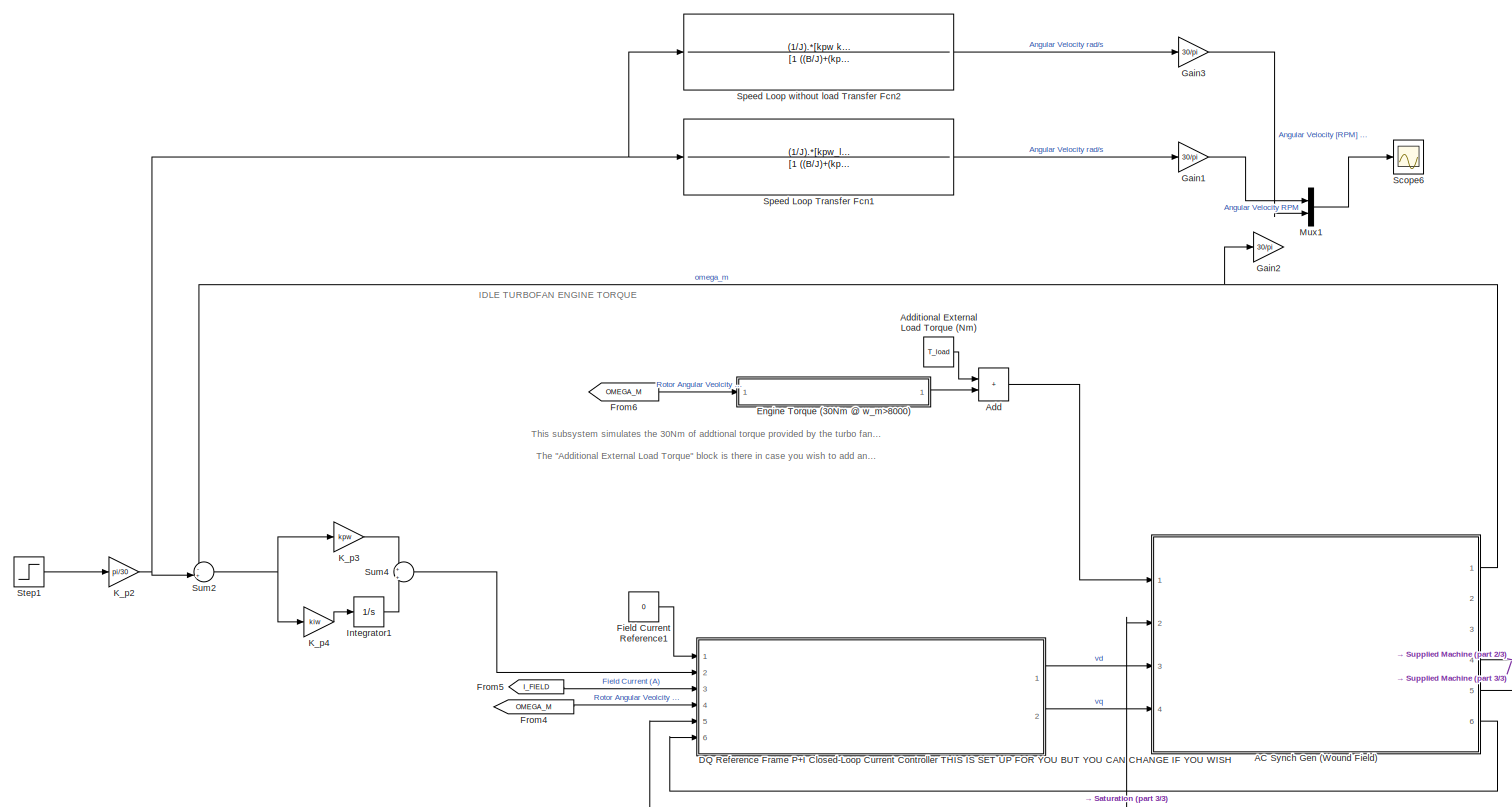
[diagram: root canvas - part 1/3, full width, top band]
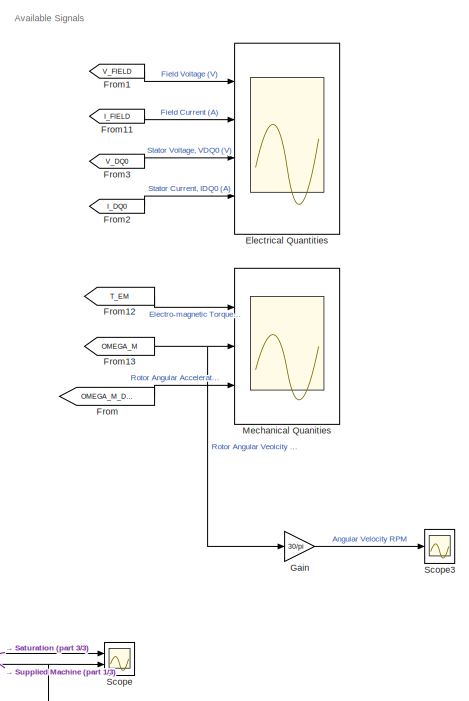
[diagram: root canvas - part 2/3, middle right region]
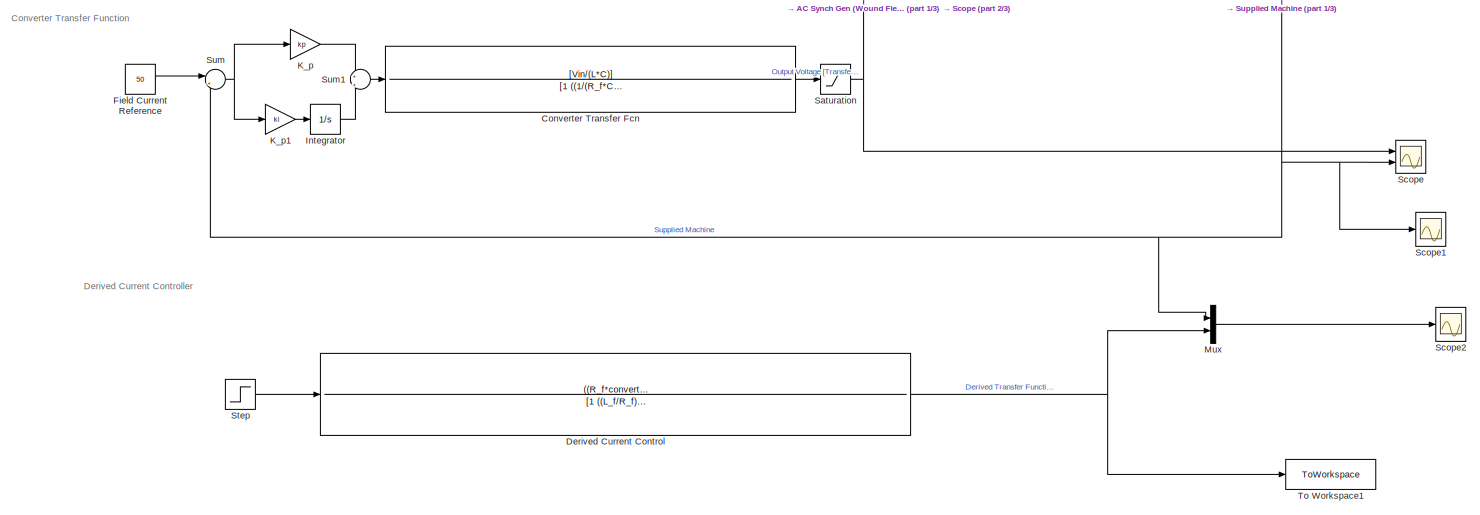
[diagram: root canvas - part 3/3, full width, bottom band]
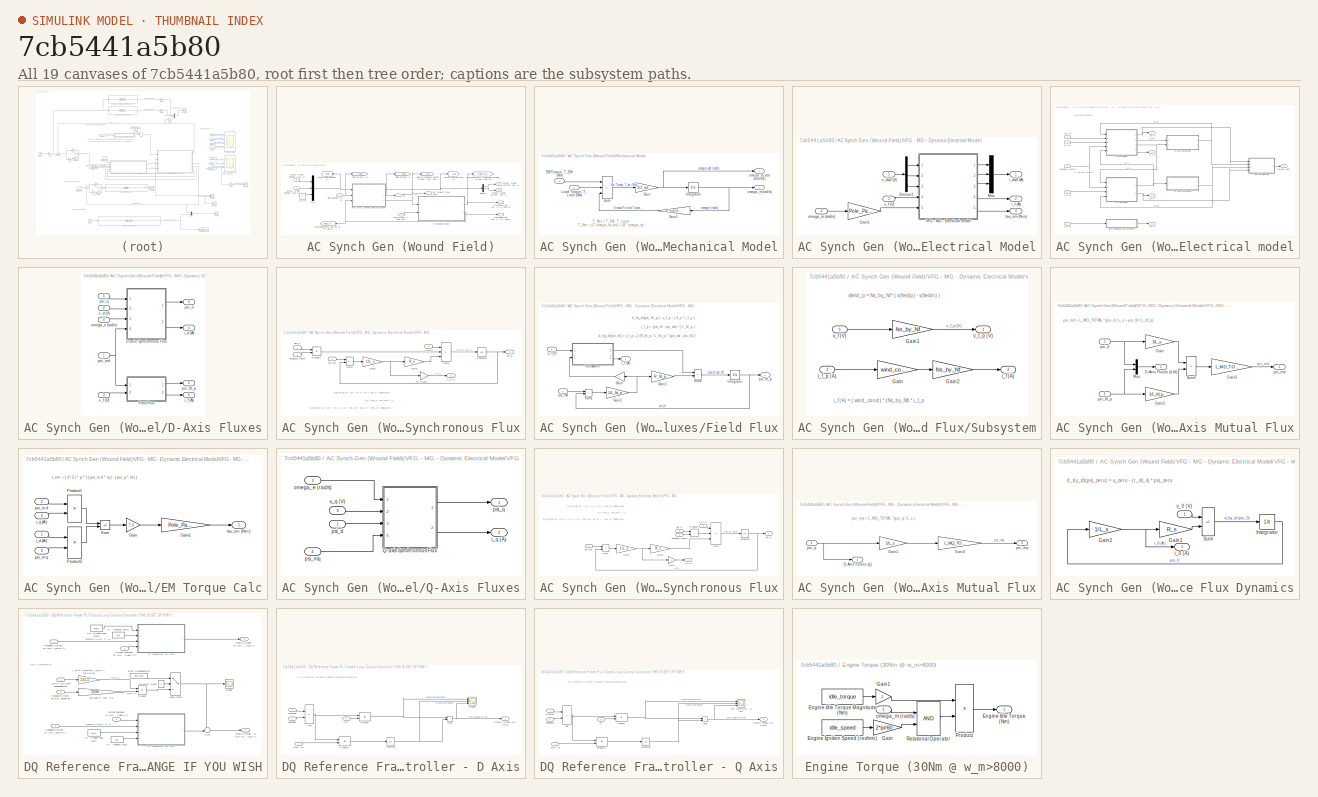
[diagram: thumbnail index - all 19 canvases of the model, root first then tree order]
MODEL slx_7cb5441a5b80
KIND model
CONFIG AbsTol = auto
CONFIG EnableMultiTasking = on
CONFIG FixedStep = inc
CONFIG MaxStep = 1e-2
CONFIG MinStep = auto
CONFIG RelTol = auto
CONFIG SampleTimeConstraint = Unconstrained
CONFIG SolverName = VariableStepAuto
CONFIG StartTime = 0.0
CONFIG StopTime = 120
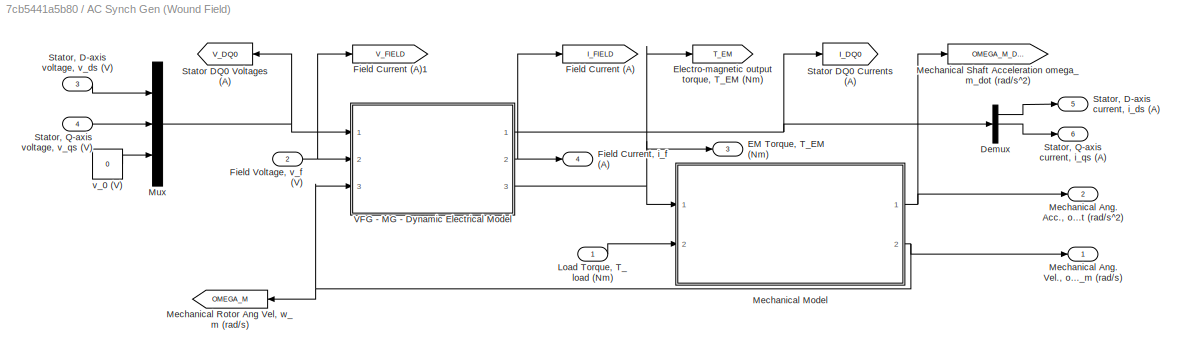
BLOCK [SubSystem] AC Synch Gen (Wound Field)
  Ports = [4, 6]
  RequestExecContextInheritance = off
BLOCK [Demux] AC Synch Gen (Wound Field)/Demux
  Outputs = 3
  Ports = [1, 3]
BLOCK [Outport] AC Synch Gen (Wound Field)/EM Torque, T_EM (Nm)
  NameLocation = top
  Port = 3
BLOCK [Goto] AC Synch Gen (Wound Field)/Electro-magnetic output torque, T_EM (Nm)
  GotoTag = T_EM
  NameLocation = top
  TagVisibility = global
BLOCK [Goto] AC Synch Gen (Wound Field)/Field Current (A)
  GotoTag = I_FIELD
  NameLocation = top
  TagVisibility = global
BLOCK [Goto] AC Synch Gen (Wound Field)/Field Current (A)1
  GotoTag = V_FIELD
  NameLocation = top
  TagVisibility = global
BLOCK [Outport] AC Synch Gen (Wound Field)/Field Current, i_f (A)
  NameLocation = top
  Port = 4
BLOCK [Inport] AC Synch Gen (Wound Field)/Field Voltage, v_f (V)
  Port = 2
BLOCK [Inport] AC Synch Gen (Wound Field)/Load Torque, T_load (Nm)
BLOCK [Outport] AC Synch Gen (Wound Field)/Mechanical Ang. Acc., omega_m_dot (rad//s^2)
  Port = 2
BLOCK [Outport] AC Synch Gen (Wound Field)/Mechanical Ang. Vel., omega_m (rad//s)
BLOCK [SubSystem] AC Synch Gen (Wound Field)/Mechanical Model
  Ports = [2, 2]
  RequestExecContextInheritance = off
BLOCK [Inport] AC Synch Gen (Wound Field)/Mechanical Model/EM Torque, T_EM (Nm)
  NameLocation = top
BLOCK [Gain] AC Synch Gen (Wound Field)/Mechanical Model/Gain
  Gain = 1/J_rotor
BLOCK [Gain] AC Synch Gen (Wound Field)/Mechanical Model/Gain1
  Gain = B_viscous
BLOCK [Integrator] AC Synch Gen (Wound Field)/Mechanical Model/Integrator
  Ports = [1, 1]
BLOCK [Inport] AC Synch Gen (Wound Field)/Mechanical Model/Load Torque, T_Load (Nm)
  Port = 2
BLOCK [Sum] AC Synch Gen (Wound Field)/Mechanical Model/Sum
  IconShape = rectangular
  Inputs = +--
  Ports = [3, 1]
BLOCK [Outport] AC Synch Gen (Wound Field)/Mechanical Model/omega_m (rad//s)
  NameLocation = top
  Port = 2
BLOCK [Outport] AC Synch Gen (Wound Field)/Mechanical Model/omega_m_dot (rad//s^2)
  NameLocation = top
BLOCK [Goto] AC Synch Gen (Wound Field)/Mechanical Rotor Ang Vel, w_m (rad//s)
  GotoTag = OMEGA_M
  NameLocation = top
  TagVisibility = global
BLOCK [Goto] AC Synch Gen (Wound Field)/Mechanical Shaft Acceleration omega_m_dot (rad//s^2)
  GotoTag = OMEGA_M_DOT
  NameLocation = top
  TagVisibility = global
BLOCK [Mux] AC Synch Gen (Wound Field)/Mux
  DisplayOption = bar
  Inputs = 3
  Ports = [3, 1]
BLOCK [Goto] AC Synch Gen (Wound Field)/Stator DQ0 Currents (A)
  GotoTag = I_DQ0
  NameLocation = top
  TagVisibility = global
BLOCK [Goto] AC Synch Gen (Wound Field)/Stator DQ0 Voltages (A)
  GotoTag = V_DQ0
  NameLocation = top
  TagVisibility = global
BLOCK [Outport] AC Synch Gen (Wound Field)/Stator, D-axis current, i_ds (A)
  NameLocation = top
  Port = 5
BLOCK [Inport] AC Synch Gen (Wound Field)/Stator, D-axis voltage, v_ds (V)
  NameLocation = top
  Port = 3
BLOCK [Outport] AC Synch Gen (Wound Field)/Stator, Q-axis current, i_qs (A)
  Port = 6
BLOCK [Inport] AC Synch Gen (Wound Field)/Stator, Q-axis voltage, v_qs (V)
  NameLocation = top
  Port = 4
BLOCK [SubSystem] AC Synch Gen (Wound Field)/VFG - MG - Dynamic Electrical Model
  Ports = [3, 3]
  RequestExecContextInheritance = off
BLOCK [Demux] AC Synch Gen (Wound Field)/VFG - MG - Dynamic Electrical Model/Demux1
  Outputs = 3
  Ports = [1, 3]
BLOCK [Gain] AC Synch Gen (Wound Field)/VFG - MG - Dynamic Electrical Model/Gain1
  Gain = Pole_Pairs
  NameLocation = top
BLOCK [Mux] AC Synch Gen (Wound Field)/VFG - MG - Dynamic Electrical Model/Mux
  DisplayOption = bar
  Inputs = 3
  Ports = [3, 1]
BLOCK [SubSystem] AC Synch Gen (Wound Field)/VFG - MG - Dynamic Electrical Model/VFG - MG - Electrical model
  Ports = [5, 5]
  RequestExecContextInheritance = off
BLOCK [SubSystem] AC Synch Gen (Wound Field)/VFG - MG - Dynamic Electrical Model/VFG - MG - Electrical model/D-Axis Fluxes
  NameLocation = top
  Ports = [5, 4]
  RequestExecContextInheritance = off
BLOCK [SubSystem] AC Synch Gen (Wound Field)/VFG - MG - Dynamic Electrical Model/VFG - MG - Electrical model/D-Axis Fluxes/D-axis Synchronous Flux
  Ports = [4, 2]
  RequestExecContextInheritance = off
BLOCK [Gain] AC Synch Gen (Wound Field)/VFG - MG - Dynamic Electrical Model/VFG - MG - Electrical model/D-Axis Fluxes/D-axis Synchronous Flux/Gain
  Gain = -1
BLOCK [Gain] AC Synch Gen (Wound Field)/VFG - MG - Dynamic Electrical Model/VFG - MG - Electrical model/D-Axis Fluxes/D-axis Synchronous Flux/Gain1
  Gain = R_s
BLOCK [Gain] AC Synch Gen (Wound Field)/VFG - MG - Dynamic Electrical Model/VFG - MG - Electrical model/D-Axis Fluxes/D-axis Synchronous Flux/Gain2
  Gain = 1/L_s
BLOCK [Integrator] AC Synch Gen (Wound Field)/VFG - MG - Dynamic Electrical Model/VFG - MG - Electrical model/D-Axis Fluxes/D-axis Synchronous Flux/Integrator
  Ports = [1, 1]
BLOCK [Product] AC Synch Gen (Wound Field)/VFG - MG - Dynamic Electrical Model/VFG - MG - Electrical model/D-Axis Fluxes/D-axis Synchronous Flux/Product1
  Ports = [2, 1]
  RndMeth = Zero
BLOCK [Sum] AC Synch Gen (Wound Field)/VFG - MG - Dynamic Electrical Model/VFG - MG - Electrical model/D-Axis Fluxes/D-axis Synchronous Flux/Sum1
  IconShape = rectangular
  Inputs = +-
  Ports = [2, 1]
BLOCK [Sum] AC Synch Gen (Wound Field)/VFG - MG - Dynamic Electrical Model/VFG - MG - Electrical model/D-Axis Fluxes/D-axis Synchronous Flux/Sum2
  IconShape = rectangular
  Inputs = +++
  Ports = [3, 1]
BLOCK [Outport] AC Synch Gen (Wound Field)/VFG - MG - Dynamic Electrical Model/VFG - MG - Electrical model/D-Axis Fluxes/D-axis Synchronous Flux/i_d (A)
  Port = 2
BLOCK [Inport] AC Synch Gen (Wound Field)/VFG - MG - Dynamic Electrical Model/VFG - MG - Electrical model/D-Axis Fluxes/D-axis Synchronous Flux/omega_e (rad//s)
  Port = 3
BLOCK [Outport] AC Synch Gen (Wound Field)/VFG - MG - Dynamic Electrical Model/VFG - MG - Electrical model/D-Axis Fluxes/D-axis Synchronous Flux/psi_d
BLOCK [Inport] AC Synch Gen (Wound Field)/VFG - MG - Dynamic Electrical Model/VFG - MG - Electrical model/D-Axis Fluxes/D-axis Synchronous Flux/psi_md
  NameLocation = top
  Port = 4
BLOCK [Inport] AC Synch Gen (Wound Field)/VFG - MG - Dynamic Electrical Model/VFG - MG - Electrical model/D-Axis Fluxes/D-axis Synchronous Flux/psi_q
  NameLocation = top
BLOCK [Inport] AC Synch Gen (Wound Field)/VFG - MG - Dynamic Electrical Model/VFG - MG - Electrical model/D-Axis Fluxes/D-axis Synchronous Flux/v_d (V)
  NameLocation = top
  Port = 2
BLOCK [SubSystem] AC Synch Gen (Wound Field)/VFG - MG - Dynamic Electrical Model/VFG - MG - Electrical model/D-Axis Fluxes/Field Flux
  Ports = [2, 2]
  RequestExecContextInheritance = off
BLOCK [Gain] AC Synch Gen (Wound Field)/VFG - MG - Dynamic Electrical Model/VFG - MG - Electrical model/D-Axis Fluxes/Field Flux/Gain
  Gain = -1
  NameLocation = top
BLOCK [Gain] AC Synch Gen (Wound Field)/VFG - MG - Dynamic Electrical Model/VFG - MG - Electrical model/D-Axis Fluxes/Field Flux/Gain1
  Gain = R_fd_p
  NameLocation = top
BLOCK [Gain] AC Synch Gen (Wound Field)/VFG - MG - Dynamic Electrical Model/VFG - MG - Electrical model/D-Axis Fluxes/Field Flux/Gain2
  Gain = 1/L_fd_p
  NameLocation = top
BLOCK [Integrator] AC Synch Gen (Wound Field)/VFG - MG - Dynamic Electrical Model/VFG - MG - Electrical model/D-Axis Fluxes/Field Flux/Integrator
  Ports = [1, 1]
BLOCK [SubSystem] AC Synch Gen (Wound Field)/VFG - MG - Dynamic Electrical Model/VFG - MG - Electrical model/D-Axis Fluxes/Field Flux/Subsystem
  Ports = [2, 2]
  RequestExecContextInheritance = off
BLOCK [Gain] AC Synch Gen (Wound Field)/VFG - MG - Dynamic Electrical Model/VFG - MG - Electrical model/D-Axis Fluxes/Field Flux/Subsystem/Gain
  Gain = wind_const
BLOCK [Gain] AC Synch Gen (Wound Field)/VFG - MG - Dynamic Electrical Model/VFG - MG - Electrical model/D-Axis Fluxes/Field Flux/Subsystem/Gain1
  Gain = Ns_by_Nf
BLOCK [Gain] AC Synch Gen (Wound Field)/VFG - MG - Dynamic Electrical Model/VFG - MG - Electrical model/D-Axis Fluxes/Field Flux/Subsystem/Gain2
  Gain = Ns_by_Nf
BLOCK [Outport] AC Synch Gen (Wound Field)/VFG - MG - Dynamic Electrical Model/VFG - MG - Electrical model/D-Axis Fluxes/Field Flux/Subsystem/i_f (A)
  Port = 2
BLOCK [Inport] AC Synch Gen (Wound Field)/VFG - MG - Dynamic Electrical Model/VFG - MG - Electrical model/D-Axis Fluxes/Field Flux/Subsystem/i_f_p (A)
  Port = 2
BLOCK [Inport] AC Synch Gen (Wound Field)/VFG - MG - Dynamic Electrical Model/VFG - MG - Electrical model/D-Axis Fluxes/Field Flux/Subsystem/v_f (V)
  NameLocation = top
BLOCK [Outport] AC Synch Gen (Wound Field)/VFG - MG - Dynamic Electrical Model/VFG - MG - Electrical model/D-Axis Fluxes/Field Flux/Subsystem/v_f_p (V)
BLOCK [Sum] AC Synch Gen (Wound Field)/VFG - MG - Dynamic Electrical Model/VFG - MG - Electrical model/D-Axis Fluxes/Field Flux/Sum1
  IconShape = rectangular
  Inputs = +-
  Ports = [2, 1]
BLOCK [Sum] AC Synch Gen (Wound Field)/VFG - MG - Dynamic Electrical Model/VFG - MG - Electrical model/D-Axis Fluxes/Field Flux/Sum2
  IconShape = rectangular
  Ports = [2, 1]
BLOCK [Outport] AC Synch Gen (Wound Field)/VFG - MG - Dynamic Electrical Model/VFG - MG - Electrical model/D-Axis Fluxes/Field Flux/i_f (A)
  Port = 2
BLOCK [Outport] AC Synch Gen (Wound Field)/VFG - MG - Dynamic Electrical Model/VFG - MG - Electrical model/D-Axis Fluxes/Field Flux/psi_fd_p
BLOCK [Inport] AC Synch Gen (Wound Field)/VFG - MG - Dynamic Electrical Model/VFG - MG - Electrical model/D-Axis Fluxes/Field Flux/psi_md
BLOCK [Inport] AC Synch Gen (Wound Field)/VFG - MG - Dynamic Electrical Model/VFG - MG - Electrical model/D-Axis Fluxes/Field Flux/v_f (V)
  NameLocation = top
  Port = 2
BLOCK [Outport] AC Synch Gen (Wound Field)/VFG - MG - Dynamic Electrical Model/VFG - MG - Electrical model/D-Axis Fluxes/i_d (A)
BLOCK [Outport] AC Synch Gen (Wound Field)/VFG - MG - Dynamic Electrical Model/VFG - MG - Electrical model/D-Axis Fluxes/i_f (A)
  Port = 4
BLOCK [Inport] AC Synch Gen (Wound Field)/VFG - MG - Dynamic Electrical Model/VFG - MG - Electrical model/D-Axis Fluxes/omega_e (rad//s)
  Port = 4
BLOCK [Outport] AC Synch Gen (Wound Field)/VFG - MG - Dynamic Electrical Model/VFG - MG - Electrical model/D-Axis Fluxes/psi_d
  Port = 3
BLOCK [Outport] AC Synch Gen (Wound Field)/VFG - MG - Dynamic Electrical Model/VFG - MG - Electrical model/D-Axis Fluxes/psi_fd_p
  Port = 2
BLOCK [Inport] AC Synch Gen (Wound Field)/VFG - MG - Dynamic Electrical Model/VFG - MG - Electrical model/D-Axis Fluxes/psi_md
BLOCK [Inport] AC Synch Gen (Wound Field)/VFG - MG - Dynamic Electrical Model/VFG - MG - Electrical model/D-Axis Fluxes/psi_q
  NameLocation = top
  Port = 5
BLOCK [Inport] AC Synch Gen (Wound Field)/VFG - MG - Dynamic Electrical Model/VFG - MG - Electrical model/D-Axis Fluxes/v_d (V)
  NameLocation = top
  Port = 2
BLOCK [Inport] AC Synch Gen (Wound Field)/VFG - MG - Dynamic Electrical Model/VFG - MG - Electrical model/D-Axis Fluxes/v_f (V)
  NameLocation = top
  Port = 3
BLOCK [SubSystem] AC Synch Gen (Wound Field)/VFG - MG - Dynamic Electrical Model/VFG - MG - Electrical model/D-Axis Mutual Flux
  NameLocation = top
  Ports = [2, 2]
  RequestExecContextInheritance = off
BLOCK [Outport] AC Synch Gen (Wound Field)/VFG - MG - Dynamic Electrical Model/VFG - MG - Electrical model/D-Axis Mutual Flux/D-Axis Fluxes (d,fd)
  Port = 2
BLOCK [Gain] AC Synch Gen (Wound Field)/VFG - MG - Dynamic Electrical Model/VFG - MG - Electrical model/D-Axis Mutual Flux/Gain
  Gain = 1/L_s
BLOCK [Gain] AC Synch Gen (Wound Field)/VFG - MG - Dynamic Electrical Model/VFG - MG - Electrical model/D-Axis Mutual Flux/Gain2
  Gain = 1/L_fd_p
BLOCK [Gain] AC Synch Gen (Wound Field)/VFG - MG - Dynamic Electrical Model/VFG - MG - Electrical model/D-Axis Mutual Flux/Gain3
  Gain = L_MD_TOTAL
BLOCK [Mux] AC Synch Gen (Wound Field)/VFG - MG - Dynamic Electrical Model/VFG - MG - Electrical model/D-Axis Mutual Flux/Mux
  DisplayOption = bar
  Inputs = 2
  NameLocation = top
  Ports = [2, 1]
BLOCK [Sum] AC Synch Gen (Wound Field)/VFG - MG - Dynamic Electrical Model/VFG - MG - Electrical model/D-Axis Mutual Flux/Sum2
  IconShape = rectangular
  Inputs = 2
  Ports = [2, 1]
BLOCK [Inport] AC Synch Gen (Wound Field)/VFG - MG - Dynamic Electrical Model/VFG - MG - Electrical model/D-Axis Mutual Flux/psi_d
  Port = 2
BLOCK [Inport] AC Synch Gen (Wound Field)/VFG - MG - Dynamic Electrical Model/VFG - MG - Electrical model/D-Axis Mutual Flux/psi_fd_p
  NameLocation = top
BLOCK [Outport] AC Synch Gen (Wound Field)/VFG - MG - Dynamic Electrical Model/VFG - MG - Electrical model/D-Axis Mutual Flux/psi_md
BLOCK [SubSystem] AC Synch Gen (Wound Field)/VFG - MG - Dynamic Electrical Model/VFG - MG - Electrical model/EM Torque Calc
  Ports = [4, 1]
  RequestExecContextInheritance = off
BLOCK [Gain] AC Synch Gen (Wound Field)/VFG - MG - Dynamic Electrical Model/VFG - MG - Electrical model/EM Torque Calc/Gain
  Gain = 1.5
BLOCK [Gain] AC Synch Gen (Wound Field)/VFG - MG - Dynamic Electrical Model/VFG - MG - Electrical model/EM Torque Calc/Gain1
  Gain = Pole_Pairs
BLOCK [Product] AC Synch Gen (Wound Field)/VFG - MG - Dynamic Electrical Model/VFG - MG - Electrical model/EM Torque Calc/Product1
  Ports = [2, 1]
  RndMeth = Zero
BLOCK [Product] AC Synch Gen (Wound Field)/VFG - MG - Dynamic Electrical Model/VFG - MG - Electrical model/EM Torque Calc/Product2
  Ports = [2, 1]
  RndMeth = Zero
BLOCK [Sum] AC Synch Gen (Wound Field)/VFG - MG - Dynamic Electrical Model/VFG - MG - Electrical model/EM Torque Calc/Sum
  IconShape = rectangular
  Inputs = +-
  Ports = [2, 1]
BLOCK [Inport] AC Synch Gen (Wound Field)/VFG - MG - Dynamic Electrical Model/VFG - MG - Electrical model/EM Torque Calc/i_d (A)
BLOCK [Inport] AC Synch Gen (Wound Field)/VFG - MG - Dynamic Electrical Model/VFG - MG - Electrical model/EM Torque Calc/i_q (A)
  Port = 4
BLOCK [Inport] AC Synch Gen (Wound Field)/VFG - MG - Dynamic Electrical Model/VFG - MG - Electrical model/EM Torque Calc/psi_md
  Port = 2
BLOCK [Inport] AC Synch Gen (Wound Field)/VFG - MG - Dynamic Electrical Model/VFG - MG - Electrical model/EM Torque Calc/psi_mq
  Port = 3
BLOCK [Outport] AC Synch Gen (Wound Field)/VFG - MG - Dynamic Electrical Model/VFG - MG - Electrical model/EM Torque Calc/tau_em (Nm)
BLOCK [SubSystem] AC Synch Gen (Wound Field)/VFG - MG - Dynamic Electrical Model/VFG - MG - Electrical model/Q-Axis Fluxes
  Ports = [4, 2]
  RequestExecContextInheritance = off
BLOCK [SubSystem] AC Synch Gen (Wound Field)/VFG - MG - Dynamic Electrical Model/VFG - MG - Electrical model/Q-Axis Fluxes/Q-axis Synchronous Flux
  Ports = [4, 2]
  RequestExecContextInheritance = off
BLOCK [Gain] AC Synch Gen (Wound Field)/VFG - MG - Dynamic Electrical Model/VFG - MG - Electrical model/Q-Axis Fluxes/Q-axis Synchronous Flux/Gain
  Gain = -1
BLOCK [Gain] AC Synch Gen (Wound Field)/VFG - MG - Dynamic Electrical Model/VFG - MG - Electrical model/Q-Axis Fluxes/Q-axis Synchronous Flux/Gain1
  Gain = 1/L_s
BLOCK [Gain] AC Synch Gen (Wound Field)/VFG - MG - Dynamic Electrical Model/VFG - MG - Electrical model/Q-Axis Fluxes/Q-axis Synchronous Flux/Gain2
  Gain = R_s
BLOCK [Integrator] AC Synch Gen (Wound Field)/VFG - MG - Dynamic Electrical Model/VFG - MG - Electrical model/Q-Axis Fluxes/Q-axis Synchronous Flux/Integrator
  Ports = [1, 1]
BLOCK [Product] AC Synch Gen (Wound Field)/VFG - MG - Dynamic Electrical Model/VFG - MG - Electrical model/Q-Axis Fluxes/Q-axis Synchronous Flux/Product1
  NameLocation = top
  Ports = [2, 1]
  RndMeth = Zero
BLOCK [Sum] AC Synch Gen (Wound Field)/VFG - MG - Dynamic Electrical Model/VFG - MG - Electrical model/Q-Axis Fluxes/Q-axis Synchronous Flux/Sum1
  IconShape = rectangular
  Inputs = +-
  Ports = [2, 1]
BLOCK [Sum] AC Synch Gen (Wound Field)/VFG - MG - Dynamic Electrical Model/VFG - MG - Electrical model/Q-Axis Fluxes/Q-axis Synchronous Flux/Sum2
  IconShape = rectangular
  Inputs = +-+
  Ports = [3, 1]
BLOCK [Outport] AC Synch Gen (Wound Field)/VFG - MG - Dynamic Electrical Model/VFG - MG - Electrical model/Q-Axis Fluxes/Q-axis Synchronous Flux/i_q (A)
  Port = 2
BLOCK [Inport] AC Synch Gen (Wound Field)/VFG - MG - Dynamic Electrical Model/VFG - MG - Electrical model/Q-Axis Fluxes/Q-axis Synchronous Flux/omega_e (rad//s)
BLOCK [Inport] AC Synch Gen (Wound Field)/VFG - MG - Dynamic Electrical Model/VFG - MG - Electrical model/Q-Axis Fluxes/Q-axis Synchronous Flux/psi_d
  NameLocation = top
  Port = 3
BLOCK [Inport] AC Synch Gen (Wound Field)/VFG - MG - Dynamic Electrical Model/VFG - MG - Electrical model/Q-Axis Fluxes/Q-axis Synchronous Flux/psi_mq
  NameLocation = top
  Port = 4
BLOCK [Outport] AC Synch Gen (Wound Field)/VFG - MG - Dynamic Electrical Model/VFG - MG - Electrical model/Q-Axis Fluxes/Q-axis Synchronous Flux/psi_q
BLOCK [Inport] AC Synch Gen (Wound Field)/VFG - MG - Dynamic Electrical Model/VFG - MG - Electrical model/Q-Axis Fluxes/Q-axis Synchronous Flux/v_q (V)
  NameLocation = top
  Port = 2
BLOCK [Outport] AC Synch Gen (Wound Field)/VFG - MG - Dynamic Electrical Model/VFG - MG - Electrical model/Q-Axis Fluxes/i_q (A)
  Port = 2
BLOCK [Inport] AC Synch Gen (Wound Field)/VFG - MG - Dynamic Electrical Model/VFG - MG - Electrical model/Q-Axis Fluxes/omega_e (rad//s)
  Port = 2
BLOCK [Inport] AC Synch Gen (Wound Field)/VFG - MG - Dynamic Electrical Model/VFG - MG - Electrical model/Q-Axis Fluxes/psi_d
BLOCK [Inport] AC Synch Gen (Wound Field)/VFG - MG - Dynamic Electrical Model/VFG - MG - Electrical model/Q-Axis Fluxes/psi_mq
  Port = 4
BLOCK [Outport] AC Synch Gen (Wound Field)/VFG - MG - Dynamic Electrical Model/VFG - MG - Electrical model/Q-Axis Fluxes/psi_q
BLOCK [Inport] AC Synch Gen (Wound Field)/VFG - MG - Dynamic Electrical Model/VFG - MG - Electrical model/Q-Axis Fluxes/v_q (V)
  NameLocation = top
  Port = 3
BLOCK [SubSystem] AC Synch Gen (Wound Field)/VFG - MG - Dynamic Electrical Model/VFG - MG - Electrical model/Q-Axis Mutual Flux
  Ports = [1, 2]
  RequestExecContextInheritance = off
BLOCK [Gain] AC Synch Gen (Wound Field)/VFG - MG - Dynamic Electrical Model/VFG - MG - Electrical model/Q-Axis Mutual Flux/Gain1
  Gain = 1/L_s
BLOCK [Gain] AC Synch Gen (Wound Field)/VFG - MG - Dynamic Electrical Model/VFG - MG - Electrical model/Q-Axis Mutual Flux/Gain3
  Gain = L_MQ_TOTAL
BLOCK [Outport] AC Synch Gen (Wound Field)/VFG - MG - Dynamic Electrical Model/VFG - MG - Electrical model/Q-Axis Mutual Flux/Q-Axis Fluxes (q)
BLOCK [Outport] AC Synch Gen (Wound Field)/VFG - MG - Dynamic Electrical Model/VFG - MG - Electrical model/Q-Axis Mutual Flux/psi_mq
  Port = 2
BLOCK [Inport] AC Synch Gen (Wound Field)/VFG - MG - Dynamic Electrical Model/VFG - MG - Electrical model/Q-Axis Mutual Flux/psi_q
BLOCK [SubSystem] AC Synch Gen (Wound Field)/VFG - MG - Dynamic Electrical Model/VFG - MG - Electrical model/Zero Sequence Flux Dynamics
  Ports = [1, 1]
  RequestExecContextInheritance = off
BLOCK [Gain] AC Synch Gen (Wound Field)/VFG - MG - Dynamic Electrical Model/VFG - MG - Electrical model/Zero Sequence Flux Dynamics/Gain1
  Gain = R_s
BLOCK [Gain] AC Synch Gen (Wound Field)/VFG - MG - Dynamic Electrical Model/VFG - MG - Electrical model/Zero Sequence Flux Dynamics/Gain2
  Gain = 1/L_s
BLOCK [Integrator] AC Synch Gen (Wound Field)/VFG - MG - Dynamic Electrical Model/VFG - MG - Electrical model/Zero Sequence Flux Dynamics/Integrator
  Ports = [1, 1]
BLOCK [Sum] AC Synch Gen (Wound Field)/VFG - MG - Dynamic Electrical Model/VFG - MG - Electrical model/Zero Sequence Flux Dynamics/Sum
  IconShape = rectangular
  Inputs = +-
  Ports = [2, 1]
BLOCK [Outport] AC Synch Gen (Wound Field)/VFG - MG - Dynamic Electrical Model/VFG - MG - Electrical model/Zero Sequence Flux Dynamics/i_0 (A)
  NameLocation = top
BLOCK [Inport] AC Synch Gen (Wound Field)/VFG - MG - Dynamic Electrical Model/VFG - MG - Electrical model/Zero Sequence Flux Dynamics/v_0 (V)
  NameLocation = top
BLOCK [Outport] AC Synch Gen (Wound Field)/VFG - MG - Dynamic Electrical Model/VFG - MG - Electrical model/i_0 (A)
  NameLocation = top
  Port = 3
BLOCK [Outport] AC Synch Gen (Wound Field)/VFG - MG - Dynamic Electrical Model/VFG - MG - Electrical model/i_d (A)
BLOCK [Outport] AC Synch Gen (Wound Field)/VFG - MG - Dynamic Electrical Model/VFG - MG - Electrical model/i_f (A)
  Port = 4
BLOCK [Outport] AC Synch Gen (Wound Field)/VFG - MG - Dynamic Electrical Model/VFG - MG - Electrical model/i_q (A)
  NameLocation = top
  Port = 2
BLOCK [Inport] AC Synch Gen (Wound Field)/VFG - MG - Dynamic Electrical Model/VFG - MG - Electrical model/omega_e (rad//s)
  NameLocation = top
  Port = 5
BLOCK [Outport] AC Synch Gen (Wound Field)/VFG - MG - Dynamic Electrical Model/VFG - MG - Electrical model/tau_em (Nm)
  Port = 5
BLOCK [Inport] AC Synch Gen (Wound Field)/VFG - MG - Dynamic Electrical Model/VFG - MG - Electrical model/v_0 (V)
  NameLocation = top
  Port = 3
BLOCK [Inport] AC Synch Gen (Wound Field)/VFG - MG - Dynamic Electrical Model/VFG - MG - Electrical model/v_d (V)
  NameLocation = top
BLOCK [Inport] AC Synch Gen (Wound Field)/VFG - MG - Dynamic Electrical Model/VFG - MG - Electrical model/v_f (V)
  Port = 4
BLOCK [Inport] AC Synch Gen (Wound Field)/VFG - MG - Dynamic Electrical Model/VFG - MG - Electrical model/v_q (V)
  Port = 2
BLOCK [Outport] AC Synch Gen (Wound Field)/VFG - MG - Dynamic Electrical Model/i_dq0 (A)
BLOCK [Outport] AC Synch Gen (Wound Field)/VFG - MG - Dynamic Electrical Model/i_f (A)
  Port = 2
BLOCK [Inport] AC Synch Gen (Wound Field)/VFG - MG - Dynamic Electrical Model/omega_m (rad//s)
  Port = 3
BLOCK [Outport] AC Synch Gen (Wound Field)/VFG - MG - Dynamic Electrical Model/tau_em (Nm)
  Port = 3
BLOCK [Inport] AC Synch Gen (Wound Field)/VFG - MG - Dynamic Electrical Model/v_dq0 (V)
  NameLocation = top
BLOCK [Inport] AC Synch Gen (Wound Field)/VFG - MG - Dynamic Electrical Model/v_f (V)
  Port = 2
BLOCK [Constant] AC Synch Gen (Wound Field)/v_0 (V)
  Value = 0
BLOCK [Sum] Add
  IconShape = rectangular
  Ports = [2, 1]
BLOCK [Constant] Additional External Load Torque (Nm)
  NameLocation = top
  Value = T_load
BLOCK [TransferFcn] Converter Transfer Fcn
  Denominator = [1 ((1/(R_f*C))+(R_L/R_f)) ((1/(L*C))*((R_L/R_f)+1))]
  Numerator = [Vin/(L*C)]
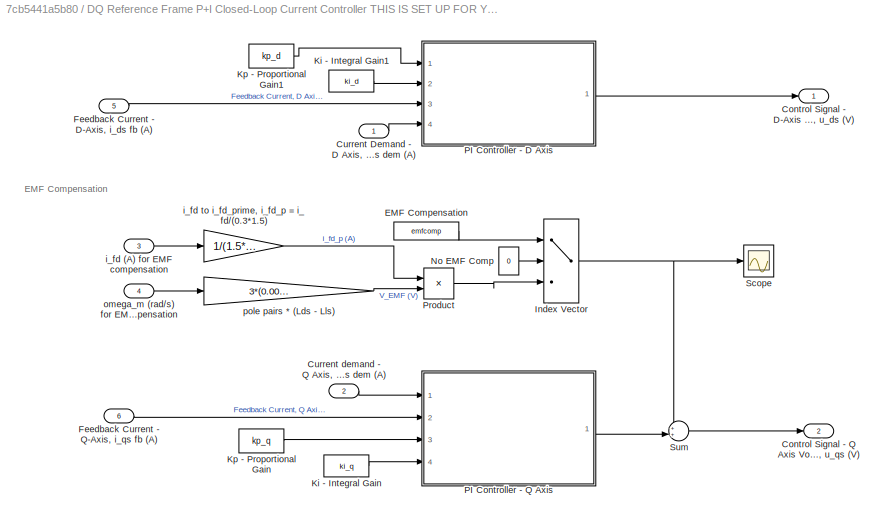
BLOCK [SubSystem] DQ Reference Frame P+I Closed-Loop Current Controller THIS IS SET UP FOR YOU BUT YOU CAN CHANGE IF YOU WISH
  Ports = [6, 2]
  RequestExecContextInheritance = off
BLOCK [Outport] DQ Reference Frame P+I Closed-Loop Current Controller THIS IS SET UP FOR YOU BUT YOU CAN CHANGE IF YOU WISH/Control Signal - D-Axis Voltage, u_ds (V)
  VectorParamsAs1DForOutWhenUnconnected = off
BLOCK [Outport] DQ Reference Frame P+I Closed-Loop Current Controller THIS IS SET UP FOR YOU BUT YOU CAN CHANGE IF YOU WISH/Control Signal - Q Axis Voltage, u_qs (V)
  Port = 2
  VectorParamsAs1DForOutWhenUnconnected = off
BLOCK [Inport] DQ Reference Frame P+I Closed-Loop Current Controller THIS IS SET UP FOR YOU BUT YOU CAN CHANGE IF YOU WISH/Current Demand - D Axis, i_ds dem (A)
BLOCK [Inport] DQ Reference Frame P+I Closed-Loop Current Controller THIS IS SET UP FOR YOU BUT YOU CAN CHANGE IF YOU WISH/Current demand - Q Axis, i_qs dem (A)
  NameLocation = top
  Port = 2
BLOCK [Constant] DQ Reference Frame P+I Closed-Loop Current Controller THIS IS SET UP FOR YOU BUT YOU CAN CHANGE IF YOU WISH/EMF Compensation
  NameLocation = top
  Value = emfcomp
BLOCK [Inport] DQ Reference Frame P+I Closed-Loop Current Controller THIS IS SET UP FOR YOU BUT YOU CAN CHANGE IF YOU WISH/Feedback Current - D-Axis, i_ds fb (A)
  Port = 5
BLOCK [Inport] DQ Reference Frame P+I Closed-Loop Current Controller THIS IS SET UP FOR YOU BUT YOU CAN CHANGE IF YOU WISH/Feedback Current - Q-Axis, i_qs fb (A)
  Port = 6
BLOCK [MultiPortSwitch] DQ Reference Frame P+I Closed-Loop Current Controller THIS IS SET UP FOR YOU BUT YOU CAN CHANGE IF YOU WISH/Index Vector
  DataPortOrder = Zero-based contiguous
  InputSameDT = off
  Inputs = 2
  Ports = [3, 1]
  SaturateOnIntegerOverflow = off
  zeroidx = on
BLOCK [Constant] DQ Reference Frame P+I Closed-Loop Current Controller THIS IS SET UP FOR YOU BUT YOU CAN CHANGE IF YOU WISH/Ki - Integral Gain
  Value = ki_q
BLOCK [Constant] DQ Reference Frame P+I Closed-Loop Current Controller THIS IS SET UP FOR YOU BUT YOU CAN CHANGE IF YOU WISH/Ki - Integral Gain1
  NameLocation = top
  Value = ki_d
BLOCK [Constant] DQ Reference Frame P+I Closed-Loop Current Controller THIS IS SET UP FOR YOU BUT YOU CAN CHANGE IF YOU WISH/Kp - Proportional Gain
  Value = kp_q
BLOCK [Constant] DQ Reference Frame P+I Closed-Loop Current Controller THIS IS SET UP FOR YOU BUT YOU CAN CHANGE IF YOU WISH/Kp - Proportional Gain1
  NameLocation = top
  Value = kp_d
BLOCK [Constant] DQ Reference Frame P+I Closed-Loop Current Controller THIS IS SET UP FOR YOU BUT YOU CAN CHANGE IF YOU WISH/No EMF Comp
  NameLocation = top
  Value = 0
BLOCK [SubSystem] DQ Reference Frame P+I Closed-Loop Current Controller THIS IS SET UP FOR YOU BUT YOU CAN CHANGE IF YOU WISH/PI Controller - D Axis
  Ports = [4, 1]
  RTWSystemCode = Reusable function
  RequestExecContextInheritance = off
  TreatAsAtomicUnit = on
BLOCK [Sum] DQ Reference Frame P+I Closed-Loop Current Controller THIS IS SET UP FOR YOU BUT YOU CAN CHANGE IF YOU WISH/PI Controller - D Axis/Add
  IconShape = rectangular
  Inputs = +-
  Ports = [2, 1]
BLOCK [Outport] DQ Reference Frame P+I Closed-Loop Current Controller THIS IS SET UP FOR YOU BUT YOU CAN CHANGE IF YOU WISH/PI Controller - D Axis/Control Signal (No Units)
  VectorParamsAs1DForOutWhenUnconnected = off
BLOCK [Inport] DQ Reference Frame P+I Closed-Loop Current Controller THIS IS SET UP FOR YOU BUT YOU CAN CHANGE IF YOU WISH/PI Controller - D Axis/Demand
  Port = 4
BLOCK [Inport] DQ Reference Frame P+I Closed-Loop Current Controller THIS IS SET UP FOR YOU BUT YOU CAN CHANGE IF YOU WISH/PI Controller - D Axis/Feedback
  Port = 3
BLOCK [Inport] DQ Reference Frame P+I Closed-Loop Current Controller THIS IS SET UP FOR YOU BUT YOU CAN CHANGE IF YOU WISH/PI Controller - D Axis/Gain - Ki
  Port = 2
BLOCK [Integrator] DQ Reference Frame P+I Closed-Loop Current Controller THIS IS SET UP FOR YOU BUT YOU CAN CHANGE IF YOU WISH/PI Controller - D Axis/Integrator
  Ports = [1, 1]
BLOCK [Inport] DQ Reference Frame P+I Closed-Loop Current Controller THIS IS SET UP FOR YOU BUT YOU CAN CHANGE IF YOU WISH/PI Controller - D Axis/Kp
BLOCK [Product] DQ Reference Frame P+I Closed-Loop Current Controller THIS IS SET UP FOR YOU BUT YOU CAN CHANGE IF YOU WISH/PI Controller - D Axis/Product
  InputSameDT = on
  OutDataTypeStr = Inherit: Same as first input
  Ports = [2, 1]
  SaturateOnIntegerOverflow = on
BLOCK [Product] DQ Reference Frame P+I Closed-Loop Current Controller THIS IS SET UP FOR YOU BUT YOU CAN CHANGE IF YOU WISH/PI Controller - D Axis/Product1
  InputSameDT = on
  OutDataTypeStr = Inherit: Same as first input
  Ports = [2, 1]
  SaturateOnIntegerOverflow = on
BLOCK [Scope] DQ Reference Frame P+I Closed-Loop Current Controller THIS IS SET UP FOR YOU BUT YOU CAN CHANGE IF YOU WISH/PI Controller - D Axis/Scope1
  Floating = off
  NumInputPorts = 3
  Ports = [3]
  ScopeSpecificationString = Simulink.scopes.TimeScopeBlockCfg('CurrentConfiguration', extmgr.ConfigurationSet(extmgr.Configuration('Core','General UI',true),extmgr.Configuration('Core','Source UI',true),extmgr.Configuration('Sources','WiredSimulink',true,'DataLoggingVariableName','ScopeData3'),extmgr.Configuration('Visuals','Time Domain',true,'SerializedDisplays',{struct('MinYLimReal','-0.06229','MaxYLimReal','0.56248','YLab...<+2820ch>
BLOCK [Sum] DQ Reference Frame P+I Closed-Loop Current Controller THIS IS SET UP FOR YOU BUT YOU CAN CHANGE IF YOU WISH/PI Controller - D Axis/Sum
  IconShape = rectangular
  InputSameDT = on
  OutDataTypeStr = Inherit: Same as first input
  Ports = [2, 1]
  SaturateOnIntegerOverflow = on
BLOCK [SubSystem] DQ Reference Frame P+I Closed-Loop Current Controller THIS IS SET UP FOR YOU BUT YOU CAN CHANGE IF YOU WISH/PI Controller - Q Axis
  Ports = [4, 1]
  RTWSystemCode = Reusable function
  RequestExecContextInheritance = off
  TreatAsAtomicUnit = on
BLOCK [Sum] DQ Reference Frame P+I Closed-Loop Current Controller THIS IS SET UP FOR YOU BUT YOU CAN CHANGE IF YOU WISH/PI Controller - Q Axis/Add
  IconShape = rectangular
  Inputs = +-
  Ports = [2, 1]
BLOCK [Outport] DQ Reference Frame P+I Closed-Loop Current Controller THIS IS SET UP FOR YOU BUT YOU CAN CHANGE IF YOU WISH/PI Controller - Q Axis/Control Signal (No Units)
  VectorParamsAs1DForOutWhenUnconnected = off
BLOCK [Inport] DQ Reference Frame P+I Closed-Loop Current Controller THIS IS SET UP FOR YOU BUT YOU CAN CHANGE IF YOU WISH/PI Controller - Q Axis/Demand
BLOCK [Inport] DQ Reference Frame P+I Closed-Loop Current Controller THIS IS SET UP FOR YOU BUT YOU CAN CHANGE IF YOU WISH/PI Controller - Q Axis/Feedback
  Port = 2
BLOCK [Inport] DQ Reference Frame P+I Closed-Loop Current Controller THIS IS SET UP FOR YOU BUT YOU CAN CHANGE IF YOU WISH/PI Controller - Q Axis/Gain - Ki
  Port = 4
BLOCK [Integrator] DQ Reference Frame P+I Closed-Loop Current Controller THIS IS SET UP FOR YOU BUT YOU CAN CHANGE IF YOU WISH/PI Controller - Q Axis/Integrator
  Ports = [1, 1]
BLOCK [Inport] DQ Reference Frame P+I Closed-Loop Current Controller THIS IS SET UP FOR YOU BUT YOU CAN CHANGE IF YOU WISH/PI Controller - Q Axis/Kp
  Port = 3
BLOCK [Scope] DQ Reference Frame P+I Closed-Loop Current Controller THIS IS SET UP FOR YOU BUT YOU CAN CHANGE IF YOU WISH/PI Controller - Q Axis/PID Controller - Q Axis
  Floating = off
  NumInputPorts = 3
  Ports = [3]
  ScopeSpecificationString = Simulink.scopes.TimeScopeBlockCfg('CurrentConfiguration', extmgr.ConfigurationSet(extmgr.Configuration('Core','General UI',true),extmgr.Configuration('Core','Source UI',true),extmgr.Configuration('Sources','WiredSimulink',true,'DataLoggingVariableName','ScopeData4'),extmgr.Configuration('Visuals','Time Domain',true,'SerializedDisplays',{struct('MinYLimReal','-0.42208','MaxYLimReal','3.38023','YLab...<+2793ch>
BLOCK [Product] DQ Reference Frame P+I Closed-Loop Current Controller THIS IS SET UP FOR YOU BUT YOU CAN CHANGE IF YOU WISH/PI Controller - Q Axis/Product
  InputSameDT = on
  OutDataTypeStr = Inherit: Same as first input
  Ports = [2, 1]
  SaturateOnIntegerOverflow = on
BLOCK [Product] DQ Reference Frame P+I Closed-Loop Current Controller THIS IS SET UP FOR YOU BUT YOU CAN CHANGE IF YOU WISH/PI Controller - Q Axis/Product1
  InputSameDT = on
  OutDataTypeStr = Inherit: Same as first input
  Ports = [2, 1]
  SaturateOnIntegerOverflow = on
BLOCK [Sum] DQ Reference Frame P+I Closed-Loop Current Controller THIS IS SET UP FOR YOU BUT YOU CAN CHANGE IF YOU WISH/PI Controller - Q Axis/Sum
  IconShape = rectangular
  InputSameDT = on
  OutDataTypeStr = Inherit: Same as first input
  Ports = [2, 1]
  SaturateOnIntegerOverflow = on
BLOCK [Product] DQ Reference Frame P+I Closed-Loop Current Controller THIS IS SET UP FOR YOU BUT YOU CAN CHANGE IF YOU WISH/Product
  Ports = [2, 1]
BLOCK [Scope] DQ Reference Frame P+I Closed-Loop Current Controller THIS IS SET UP FOR YOU BUT YOU CAN CHANGE IF YOU WISH/Scope
  Floating = off
  NumInputPorts = 1
  Ports = [1]
  ScopeSpecificationString = Simulink.scopes.TimeScopeBlockCfg('CurrentConfiguration', extmgr.ConfigurationSet(extmgr.Configuration('Core','General UI',true),extmgr.Configuration('Core','Source UI',true),extmgr.Configuration('Sources','WiredSimulink',true,'DataLoggingVariableName','ScopeData1'),extmgr.Configuration('Visuals','Time Domain',true,'SerializedDisplays',{struct('MinYLimReal','206.24362','MaxYLimReal','222.98772','Y...<+1431ch>
BLOCK [Sum] DQ Reference Frame P+I Closed-Loop Current Controller THIS IS SET UP FOR YOU BUT YOU CAN CHANGE IF YOU WISH/Sum
  Inputs = ++|
  Ports = [2, 1]
BLOCK [Inport] DQ Reference Frame P+I Closed-Loop Current Controller THIS IS SET UP FOR YOU BUT YOU CAN CHANGE IF YOU WISH/i_fd (A) for EMF compensation
  Port = 3
BLOCK [Gain] DQ Reference Frame P+I Closed-Loop Current Controller THIS IS SET UP FOR YOU BUT YOU CAN CHANGE IF YOU WISH/i_fd to i_fd_prime, i_fd_p = i_fd//(0.3*1.5)
  Gain = 1/(1.5*0.3)
  NameLocation = top
BLOCK [Inport] DQ Reference Frame P+I Closed-Loop Current Controller THIS IS SET UP FOR YOU BUT YOU CAN CHANGE IF YOU WISH/omega_m (rad//s) for EMF compensation
  Port = 4
BLOCK [Gain] DQ Reference Frame P+I Closed-Loop Current Controller THIS IS SET UP FOR YOU BUT YOU CAN CHANGE IF YOU WISH/pole pairs * (Lds - Lls)
  Gain = 3*(0.00057-0.00005)
BLOCK [TransferFcn] Derived Current Control
  Denominator = [1 ((L_f/R_f)+((kp*R_f*converter_const)/L_f)) ((ki*R_f*converter_const)/L_f)]
  Numerator = ((R_f*converter_const)/L_f).*[kp ki]
BLOCK [Scope] Electrical Quantities
  Floating = off
  NumInputPorts = 4
  Ports = [4]
  ScopeSpecificationString = Simulink.scopes.TimeScopeBlockCfg('CurrentConfiguration', extmgr.ConfigurationSet(extmgr.Configuration('Core','General UI',true),extmgr.Configuration('Core','Source UI',true),extmgr.Configuration('Sources','WiredSimulink',true,'DataLoggingSaveFormat','StructureWithTime','DataLoggingDecimation','1','DataLoggingDecimateData',true,'DataLoggingVariableName','ScopeData4'),extmgr.Configuration('Visuals'...<+4221ch>
BLOCK [SubSystem] Engine Torque (30Nm @ w_m>8000)
  Ports = [1, 1]
  RequestExecContextInheritance = off
BLOCK [Outport] Engine Torque (30Nm @ w_m>8000)/Engine Idle Torque (Nm)
BLOCK [Constant] Engine Torque (30Nm @ w_m>8000)/Engine Idle Torque Magnitude (Nm)
  NameLocation = top
  Value = idle_torque
BLOCK [Constant] Engine Torque (30Nm @ w_m>8000)/Engine Ignition Speed (rev//min)
  Value = idle_speed
BLOCK [Gain] Engine Torque (30Nm @ w_m>8000)/Gain
  Gain = 2*pi/60
BLOCK [Gain] Engine Torque (30Nm @ w_m>8000)/Gain1
  Gain = -1
BLOCK [Product] Engine Torque (30Nm @ w_m>8000)/Product
  NameLocation = top
  Ports = [2, 1]
BLOCK [RelationalOperator] Engine Torque (30Nm @ w_m>8000)/Relational Operator
  InputSameDT = off
  OutDataTypeStr = boolean
  Ports = [2, 1]
  RndMeth = Simplest
BLOCK [Inport] Engine Torque (30Nm @ w_m>8000)/omega_m (rad//s)
BLOCK [Constant] Field Current Reference
  NameLocation = top
  Value = 50
BLOCK [Constant] Field Current Reference1
  NameLocation = top
  Value = 0
BLOCK [From] From
  CloseFcn = tagdialog Close
  GotoTag = OMEGA_M_DOT
  TagVisibility = global
BLOCK [From] From1
  CloseFcn = tagdialog Close
  GotoTag = V_FIELD
  TagVisibility = global
BLOCK [From] From11
  CloseFcn = tagdialog Close
  GotoTag = I_FIELD
  TagVisibility = global
BLOCK [From] From12
  CloseFcn = tagdialog Close
  GotoTag = T_EM
  TagVisibility = global
BLOCK [From] From13
  CloseFcn = tagdialog Close
  GotoTag = OMEGA_M
  TagVisibility = global
BLOCK [From] From2
  CloseFcn = tagdialog Close
  GotoTag = I_DQ0
  TagVisibility = global
BLOCK [From] From3
  CloseFcn = tagdialog Close
  GotoTag = V_DQ0
  TagVisibility = global
BLOCK [From] From4
  CloseFcn = tagdialog Close
  GotoTag = OMEGA_M
  TagVisibility = global
BLOCK [From] From5
  CloseFcn = tagdialog Close
  GotoTag = I_FIELD
  TagVisibility = global
BLOCK [From] From6
  CloseFcn = tagdialog Close
  GotoTag = OMEGA_M
  TagVisibility = global
BLOCK [Gain] Gain
  Gain = 30/pi
BLOCK [Gain] Gain1
  Gain = 30/pi
BLOCK [Gain] Gain2
  Gain = 30/pi
BLOCK [Gain] Gain3
  Gain = 30/pi
BLOCK [Integrator] Integrator
  Ports = [1, 1]
BLOCK [Integrator] Integrator1
  Ports = [1, 1]
BLOCK [Gain] K_p
  Gain = kp
BLOCK [Gain] K_p1
  Gain = ki
BLOCK [Gain] K_p2
  Gain = pi/30
BLOCK [Gain] K_p3
  Gain = kpw
BLOCK [Gain] K_p4
  Gain = kiw
BLOCK [Scope] Mechanical Quanities
  Floating = off
  NumInputPorts = 3
  Ports = [3]
  ScopeSpecificationString = Simulink.scopes.TimeScopeBlockCfg('CurrentConfiguration', extmgr.ConfigurationSet(extmgr.Configuration('Core','General UI',true),extmgr.Configuration('Core','Source UI',true),extmgr.Configuration('Sources','WiredSimulink',true,'DataLoggingVariableName','ScopeData3','DataLoggingSaveFormat','StructureWithTime','DataLoggingDecimation','1','DataLoggingDecimateData',true),extmgr.Configuration('Visuals'...<+2708ch>
BLOCK [Mux] Mux
  DisplayOption = bar
  Inputs = 2
  Ports = [2, 1]
BLOCK [Mux] Mux1
  DisplayOption = bar
  Inputs = 2
  Ports = [2, 1]
BLOCK [Saturate] Saturation
  LowerLimit = 0
  UpperLimit = Vin*0.9
BLOCK [Scope] Scope
  Floating = off
  NumInputPorts = 2
  Ports = [2]
  ScopeSpecificationString = Simulink.scopes.TimeScopeBlockCfg('CurrentConfiguration', extmgr.ConfigurationSet(extmgr.Configuration('Core','General UI',true),extmgr.Configuration('Core','Source UI',true),extmgr.Configuration('Sources','WiredSimulink',true,'DataLoggingVariableName','ScopeData1'),extmgr.Configuration('Visuals','Time Domain',true,'SerializedDisplays',{struct('MinYLimReal','-2.8125','MaxYLimReal','25.3125','YLabe...<+2148ch>
BLOCK [Scope] Scope1
  Floating = off
  NumInputPorts = 1
  Ports = [1]
  ScopeSpecificationString = Simulink.scopes.TimeScopeBlockCfg('CurrentConfiguration', extmgr.ConfigurationSet(extmgr.Configuration('Core','General UI',true,'FigureColor',[1 1 1]),extmgr.Configuration('Core','Source UI',true),extmgr.Configuration('Sources','WiredSimulink',true,'DataLoggingVariableName','ScopeData1'),extmgr.Configuration('Visuals','Time Domain',true,'SerializedDisplays',{struct('MinYLimReal','-7.40144','MaxYLi...<+1704ch>
BLOCK [Scope] Scope2
  Floating = off
  NumInputPorts = 1
  Ports = [1]
  ScopeSpecificationString = Simulink.scopes.TimeScopeBlockCfg('CurrentConfiguration', extmgr.ConfigurationSet(extmgr.Configuration('Core','General UI',true,'FigureColor',[1 1 1]),extmgr.Configuration('Core','Source UI',true),extmgr.Configuration('Sources','WiredSimulink',true,'DataLoggingVariableName','ScopeData2'),extmgr.Configuration('Visuals','Time Domain',true,'SerializedDisplays',{struct('MinYLimReal','-7.40144','MaxYLi...<+1815ch>
BLOCK [Scope] Scope3
  Floating = off
  NumInputPorts = 1
  Ports = [1]
  ScopeSpecificationString = Simulink.scopes.TimeScopeBlockCfg('CurrentConfiguration', extmgr.ConfigurationSet(extmgr.Configuration('Core','General UI',true,'FigureColor',[1 1 1]),extmgr.Configuration('Core','Source UI',true),extmgr.Configuration('Sources','WiredSimulink',true,'DataLoggingVariableName','ScopeData3'),extmgr.Configuration('Visuals','Time Domain',true,'SerializedDisplays',{struct('MinYLimReal','-1795.41863','Max...<+1813ch>
BLOCK [Scope] Scope6
  Floating = off
  NumInputPorts = 1
  Ports = [1]
  ScopeSpecificationString = Simulink.scopes.TimeScopeBlockCfg('CurrentConfiguration', extmgr.ConfigurationSet(extmgr.Configuration('Core','General UI',true,'FigureColor',[1 1 1]),extmgr.Configuration('Core','Source UI',true),extmgr.Configuration('Sources','WiredSimulink',true,'DataLoggingVariableName','ScopeData6'),extmgr.Configuration('Visuals','Time Domain',true,'SerializedDisplays',{struct('MinYLimReal','-1518.10552','Max...<+1851ch>
BLOCK [TransferFcn] Speed Loop Transfer Fcn1
  Denominator = [1 ((B/J)+(kpw_load/J) + (T_load/(120*J))) (kiw/J)]
  Numerator = (1/J).*[kpw_load kiw]
BLOCK [TransferFcn] Speed Loop without load Transfer Fcn2
  Denominator = [1 ((B/J)+(kpw/J)) (kiw/J)]
  Numerator = (1/J).*[kpw kiw]
BLOCK [Step] Step
  After = 50
  SampleTime = 0
  Time = 0
BLOCK [Step] Step1
  After = 12000
  SampleTime = 0
  Time = 5
BLOCK [Sum] Sum
  Inputs = |+-
  Ports = [2, 1]
BLOCK [Sum] Sum1
  Inputs = +|+
  Ports = [2, 1]
BLOCK [Sum] Sum2
  Inputs = -+|
  Ports = [2, 1]
BLOCK [Sum] Sum4
  Inputs = +|+
  Ports = [2, 1]
BLOCK [ToWorkspace] To Workspace1
  FixptAsFi = on
  MaxDataPoints = inf
  Ports = [1]
  SampleTime = -1
  SaveFormat = Timeseries
  VariableName = simout1
ANNOTATION (root): Available Signals
ANNOTATION (root): Converter Transfer Function
ANNOTATION (root): Derived Current Controller
ANNOTATION (root): IDLE TURBOFAN ENGINE TORQUE
ANNOTATION (root): This subsystem simulates the 30Nm of addtional torque provided by the turbo fan engine when it reachs 8000rpm. It can (but doesn't need to be) disconnected when trying things out but should be connected when demonstrating the sutiability of your final solution. The "Additional External Load Torque" block is there in case you wish to add an arbitrary load for any reason but can be left to 0 othewis...<+2ch>
ANNOTATION AC Synch Gen (Wound Field)/Mechanical Model: T_Net = T_EM - T_Load T_Net = (J * omega_m_dot) + (B * omega_m)
ANNOTATION AC Synch Gen (Wound Field)/VFG - MG - Dynamic Electrical Model/VFG - MG - Electrical model: D-Axis Flux Dynamics
ANNOTATION AC Synch Gen (Wound Field)/VFG - MG - Dynamic Electrical Model/VFG - MG - Electrical model: Q-Axis Flux Dynamics
ANNOTATION AC Synch Gen (Wound Field)/VFG - MG - Dynamic Electrical Model/VFG - MG - Electrical model/D-Axis Fluxes/D-axis Synchronous Flux: d_by_dt(psi_d) = vd + [ (R_s / L_s) * (psi_md - psi_d) ] + (psi_q * radps_elec)
ANNOTATION AC Synch Gen (Wound Field)/VFG - MG - Dynamic Electrical Model/VFG - MG - Electrical model/D-Axis Fluxes/D-axis Synchronous Flux: d_by_dt(psi_d) = vd - (R_s * id) + (psi_q * radps_elec)
ANNOTATION AC Synch Gen (Wound Field)/VFG - MG - Dynamic Electrical Model/VFG - MG - Electrical model/D-Axis Fluxes/D-axis Synchronous Flux: i_d = (psi_q - psi_md)/ l_s
ANNOTATION AC Synch Gen (Wound Field)/VFG - MG - Dynamic Electrical Model/VFG - MG - Electrical model/D-Axis Fluxes/Field Flux: d_by_dt(psi_fd) = v_f_p + [ (R_fd_p / L_fd_p) * (psi_md - psi_fd) ]
ANNOTATION AC Synch Gen (Wound Field)/VFG - MG - Dynamic Electrical Model/VFG - MG - Electrical model/D-Axis Fluxes/Field Flux: d_by_dt(psi_fd_p) = v_f_p - ( rf_p * i_f_p )
ANNOTATION AC Synch Gen (Wound Field)/VFG - MG - Dynamic Electrical Model/VFG - MG - Electrical model/D-Axis Fluxes/Field Flux: i_f_p = (psi_fd - psi_md) / ( L_fd_p )
ANNOTATION AC Synch Gen (Wound Field)/VFG - MG - Dynamic Electrical Model/VFG - MG - Electrical model/D-Axis Fluxes/Field Flux/Subsystem: i_f (A) = ( wind_const ) * (Ns_by_Nf) * i_f_p
ANNOTATION AC Synch Gen (Wound Field)/VFG - MG - Dynamic Electrical Model/VFG - MG - Electrical model/D-Axis Fluxes/Field Flux/Subsystem: vfield_p = Ns_by_Nf * ( v(fieldp) - v(fieldn) )
ANNOTATION AC Synch Gen (Wound Field)/VFG - MG - Dynamic Electrical Model/VFG - MG - Electrical model/D-Axis Mutual Flux: psi_md = L_MD_TOTAL * (psi_d / L_s + psi_fd / L_fd_p)
ANNOTATION AC Synch Gen (Wound Field)/VFG - MG - Dynamic Electrical Model/VFG - MG - Electrical model/EM Torque Calc: t_em = ( 3 / 2 ) * p * ( ( psi_md * iq ) - ( psi_q * id ) )
ANNOTATION AC Synch Gen (Wound Field)/VFG - MG - Dynamic Electrical Model/VFG - MG - Electrical model/Q-Axis Fluxes/Q-axis Synchronous Flux: d_by_dt(psi_q) = v_q + [ (r_s / l_s) * (psi_mq - psi_q) ] - (psi_d * radps_elec)
ANNOTATION AC Synch Gen (Wound Field)/VFG - MG - Dynamic Electrical Model/VFG - MG - Electrical model/Q-Axis Fluxes/Q-axis Synchronous Flux: d_by_dt(psi_q) = v_q - (r_s * iq_) - (psi_d * radps_elec)
ANNOTATION AC Synch Gen (Wound Field)/VFG - MG - Dynamic Electrical Model/VFG - MG - Electrical model/Q-Axis Fluxes/Q-axis Synchronous Flux: i_q = (psi_q - psi_mq) / l_s
ANNOTATION AC Synch Gen (Wound Field)/VFG - MG - Dynamic Electrical Model/VFG - MG - Electrical model/Q-Axis Mutual Flux: psi_mq = L_MQ_TOTAL * (psi_q / L_s )
ANNOTATION AC Synch Gen (Wound Field)/VFG - MG - Dynamic Electrical Model/VFG - MG - Electrical model/Zero Sequence Flux Dynamics: d_by_dt(psi_zero) = v_zero - (r_s/l_s) * psi_zero
ANNOTATION DQ Reference Frame P+I Closed-Loop Current Controller THIS IS SET UP FOR YOU BUT YOU CAN CHANGE IF YOU WISH: EMF Compensation
ANNOTATION DQ Reference Frame P+I Closed-Loop Current Controller THIS IS SET UP FOR YOU BUT YOU CAN CHANGE IF YOU WISH/PI Controller - D Axis: P+I Controller (No anti-windup or satuation protection)
ANNOTATION DQ Reference Frame P+I Closed-Loop Current Controller THIS IS SET UP FOR YOU BUT YOU CAN CHANGE IF YOU WISH/PI Controller - Q Axis: P+I Controller (No anti-windup or satuation protection)
LINE AC Synch Gen (Wound Field)/Demux:1 -> AC Synch Gen (Wound Field)/Stator, D-axis current, i_ds (A):1
LINE AC Synch Gen (Wound Field)/Demux:2 -> AC Synch Gen (Wound Field)/Stator, Q-axis current, i_qs (A):1
NET AC Synch Gen (Wound Field)/Field Voltage, v_f (V):1 -> AC Synch Gen (Wound Field)/Field Current (A)1:1, AC Synch Gen (Wound Field)/VFG - MG - Dynamic Electrical Model:2
LINE AC Synch Gen (Wound Field)/Load Torque, T_load (Nm):1 -> AC Synch Gen (Wound Field)/Mechanical Model:2
LINE AC Synch Gen (Wound Field)/Mechanical Model/EM Torque, T_EM (Nm):1 -> AC Synch Gen (Wound Field)/Mechanical Model/Sum:1
LINE AC Synch Gen (Wound Field)/Mechanical Model/Gain1:1 -> AC Synch Gen (Wound Field)/Mechanical Model/Sum:3
NET AC Synch Gen (Wound Field)/Mechanical Model/Gain:1 -> AC Synch Gen (Wound Field)/Mechanical Model/Integrator:1, AC Synch Gen (Wound Field)/Mechanical Model/omega_m_dot (rad//s^2):1
NET AC Synch Gen (Wound Field)/Mechanical Model/Integrator:1 -> AC Synch Gen (Wound Field)/Mechanical Model/Gain1:1, AC Synch Gen (Wound Field)/Mechanical Model/omega_m (rad//s):1
LINE AC Synch Gen (Wound Field)/Mechanical Model/Load Torque, T_Load (Nm):1 -> AC Synch Gen (Wound Field)/Mechanical Model/Sum:2
LINE AC Synch Gen (Wound Field)/Mechanical Model/Sum:1 -> AC Synch Gen (Wound Field)/Mechanical Model/Gain:1
NET AC Synch Gen (Wound Field)/Mechanical Model:1 -> AC Synch Gen (Wound Field)/Mechanical Ang. Acc., omega_m_dot (rad//s^2):1, AC Synch Gen (Wound Field)/Mechanical Shaft Acceleration omega_m_dot (rad//s^2):1
NET AC Synch Gen (Wound Field)/Mechanical Model:2 -> AC Synch Gen (Wound Field)/Mechanical Ang. Vel., omega_m (rad//s):1, AC Synch Gen (Wound Field)/Mechanical Rotor Ang Vel, w_m (rad//s):1, AC Synch Gen (Wound Field)/VFG - MG - Dynamic Electrical Model:3
NET AC Synch Gen (Wound Field)/Mux:1 -> AC Synch Gen (Wound Field)/Stator DQ0 Voltages (A):1, AC Synch Gen (Wound Field)/VFG - MG - Dynamic Electrical Model:1
LINE AC Synch Gen (Wound Field)/Stator, D-axis voltage, v_ds (V):1 -> AC Synch Gen (Wound Field)/Mux:1
LINE AC Synch Gen (Wound Field)/Stator, Q-axis voltage, v_qs (V):1 -> AC Synch Gen (Wound Field)/Mux:2
LINE AC Synch Gen (Wound Field)/VFG - MG - Dynamic Electrical Model/Demux1:1 -> AC Synch Gen (Wound Field)/VFG - MG - Dynamic Electrical Model/VFG - MG - Electrical model:1
LINE AC Synch Gen (Wound Field)/VFG - MG - Dynamic Electrical Model/Demux1:2 -> AC Synch Gen (Wound Field)/VFG - MG - Dynamic Electrical Model/VFG - MG - Electrical model:2
LINE AC Synch Gen (Wound Field)/VFG - MG - Dynamic Electrical Model/Demux1:3 -> AC Synch Gen (Wound Field)/VFG - MG - Dynamic Electrical Model/VFG - MG - Electrical model:3
LINE AC Synch Gen (Wound Field)/VFG - MG - Dynamic Electrical Model/Gain1:1 -> AC Synch Gen (Wound Field)/VFG - MG - Dynamic Electrical Model/VFG - MG - Electrical model:5
LINE AC Synch Gen (Wound Field)/VFG - MG - Dynamic Electrical Model/Mux:1 -> AC Synch Gen (Wound Field)/VFG - MG - Dynamic Electrical Model/i_dq0 (A):1
LINE AC Synch Gen (Wound Field)/VFG - MG - Dynamic Electrical Model/VFG - MG - Electrical model/D-Axis Fluxes/D-axis Synchronous Flux/Gain1:1 -> AC Synch Gen (Wound Field)/VFG - MG - Dynamic Electrical Model/VFG - MG - Electrical model/D-Axis Fluxes/D-axis Synchronous Flux/Sum2:3
NET AC Synch Gen (Wound Field)/VFG - MG - Dynamic Electrical Model/VFG - MG - Electrical model/D-Axis Fluxes/D-axis Synchronous Flux/Gain2:1 -> AC Synch Gen (Wound Field)/VFG - MG - Dynamic Electrical Model/VFG - MG - Electrical model/D-Axis Fluxes/D-axis Synchronous Flux/Gain1:1, AC Synch Gen (Wound Field)/VFG - MG - Dynamic Electrical Model/VFG - MG - Electrical model/D-Axis Fluxes/D-axis Synchronous Flux/Gain:1
LINE AC Synch Gen (Wound Field)/VFG - MG - Dynamic Electrical Model/VFG - MG - Electrical model/D-Axis Fluxes/D-axis Synchronous Flux/Gain:1 -> AC Synch Gen (Wound Field)/VFG - MG - Dynamic Electrical Model/VFG - MG - Electrical model/D-Axis Fluxes/D-axis Synchronous Flux/i_d (A):1
NET AC Synch Gen (Wound Field)/VFG - MG - Dynamic Electrical Model/VFG - MG - Electrical model/D-Axis Fluxes/D-axis Synchronous Flux/Integrator:1 -> AC Synch Gen (Wound Field)/VFG - MG - Dynamic Electrical Model/VFG - MG - Electrical model/D-Axis Fluxes/D-axis Synchronous Flux/Sum1:2, AC Synch Gen (Wound Field)/VFG - MG - Dynamic Electrical Model/VFG - MG - Electrical model/D-Axis Fluxes/D-axis Synchronous Flux/psi_d:1
LINE AC Synch Gen (Wound Field)/VFG - MG - Dynamic Electrical Model/VFG - MG - Electrical model/D-Axis Fluxes/D-axis Synchronous Flux/Product1:1 -> AC Synch Gen (Wound Field)/VFG - MG - Dynamic Electrical Model/VFG - MG - Electrical model/D-Axis Fluxes/D-axis Synchronous Flux/Sum2:2
LINE AC Synch Gen (Wound Field)/VFG - MG - Dynamic Electrical Model/VFG - MG - Electrical model/D-Axis Fluxes/D-axis Synchronous Flux/Sum1:1 -> AC Synch Gen (Wound Field)/VFG - MG - Dynamic Electrical Model/VFG - MG - Electrical model/D-Axis Fluxes/D-axis Synchronous Flux/Gain2:1
LINE AC Synch Gen (Wound Field)/VFG - MG - Dynamic Electrical Model/VFG - MG - Electrical model/D-Axis Fluxes/D-axis Synchronous Flux/Sum2:1 -> AC Synch Gen (Wound Field)/VFG - MG - Dynamic Electrical Model/VFG - MG - Electrical model/D-Axis Fluxes/D-axis Synchronous Flux/Integrator:1
LINE AC Synch Gen (Wound Field)/VFG - MG - Dynamic Electrical Model/VFG - MG - Electrical model/D-Axis Fluxes/D-axis Synchronous Flux/omega_e (rad//s):1 -> AC Synch Gen (Wound Field)/VFG - MG - Dynamic Electrical Model/VFG - MG - Electrical model/D-Axis Fluxes/D-axis Synchronous Flux/Product1:2
LINE AC Synch Gen (Wound Field)/VFG - MG - Dynamic Electrical Model/VFG - MG - Electrical model/D-Axis Fluxes/D-axis Synchronous Flux/psi_md:1 -> AC Synch Gen (Wound Field)/VFG - MG - Dynamic Electrical Model/VFG - MG - Electrical model/D-Axis Fluxes/D-axis Synchronous Flux/Sum1:1
LINE AC Synch Gen (Wound Field)/VFG - MG - Dynamic Electrical Model/VFG - MG - Electrical model/D-Axis Fluxes/D-axis Synchronous Flux/psi_q:1 -> AC Synch Gen (Wound Field)/VFG - MG - Dynamic Electrical Model/VFG - MG - Electrical model/D-Axis Fluxes/D-axis Synchronous Flux/Product1:1
LINE AC Synch Gen (Wound Field)/VFG - MG - Dynamic Electrical Model/VFG - MG - Electrical model/D-Axis Fluxes/D-axis Synchronous Flux/v_d (V):1 -> AC Synch Gen (Wound Field)/VFG - MG - Dynamic Electrical Model/VFG - MG - Electrical model/D-Axis Fluxes/D-axis Synchronous Flux/Sum2:1
LINE AC Synch Gen (Wound Field)/VFG - MG - Dynamic Electrical Model/VFG - MG - Electrical model/D-Axis Fluxes/D-axis Synchronous Flux:1 -> AC Synch Gen (Wound Field)/VFG - MG - Dynamic Electrical Model/VFG - MG - Electrical model/D-Axis Fluxes/psi_d:1
LINE AC Synch Gen (Wound Field)/VFG - MG - Dynamic Electrical Model/VFG - MG - Electrical model/D-Axis Fluxes/D-axis Synchronous Flux:2 -> AC Synch Gen (Wound Field)/VFG - MG - Dynamic Electrical Model/VFG - MG - Electrical model/D-Axis Fluxes/i_d (A):1
LINE AC Synch Gen (Wound Field)/VFG - MG - Dynamic Electrical Model/VFG - MG - Electrical model/D-Axis Fluxes/Field Flux/Gain1:1 -> AC Synch Gen (Wound Field)/VFG - MG - Dynamic Electrical Model/VFG - MG - Electrical model/D-Axis Fluxes/Field Flux/Sum2:2
NET AC Synch Gen (Wound Field)/VFG - MG - Dynamic Electrical Model/VFG - MG - Electrical model/D-Axis Fluxes/Field Flux/Gain2:1 -> AC Synch Gen (Wound Field)/VFG - MG - Dynamic Electrical Model/VFG - MG - Electrical model/D-Axis Fluxes/Field Flux/Gain1:1, AC Synch Gen (Wound Field)/VFG - MG - Dynamic Electrical Model/VFG - MG - Electrical model/D-Axis Fluxes/Field Flux/Gain:1
LINE AC Synch Gen (Wound Field)/VFG - MG - Dynamic Electrical Model/VFG - MG - Electrical model/D-Axis Fluxes/Field Flux/Gain:1 -> AC Synch Gen (Wound Field)/VFG - MG - Dynamic Electrical Model/VFG - MG - Electrical model/D-Axis Fluxes/Field Flux/Subsystem:2
NET AC Synch Gen (Wound Field)/VFG - MG - Dynamic Electrical Model/VFG - MG - Electrical model/D-Axis Fluxes/Field Flux/Integrator:1 -> AC Synch Gen (Wound Field)/VFG - MG - Dynamic Electrical Model/VFG - MG - Electrical model/D-Axis Fluxes/Field Flux/Sum1:2, AC Synch Gen (Wound Field)/VFG - MG - Dynamic Electrical Model/VFG - MG - Electrical model/D-Axis Fluxes/Field Flux/psi_fd_p:1
LINE AC Synch Gen (Wound Field)/VFG - MG - Dynamic Electrical Model/VFG - MG - Electrical model/D-Axis Fluxes/Field Flux/Subsystem/Gain1:1 -> AC Synch Gen (Wound Field)/VFG - MG - Dynamic Electrical Model/VFG - MG - Electrical model/D-Axis Fluxes/Field Flux/Subsystem/v_f_p (V):1
LINE AC Synch Gen (Wound Field)/VFG - MG - Dynamic Electrical Model/VFG - MG - Electrical model/D-Axis Fluxes/Field Flux/Subsystem/Gain2:1 -> AC Synch Gen (Wound Field)/VFG - MG - Dynamic Electrical Model/VFG - MG - Electrical model/D-Axis Fluxes/Field Flux/Subsystem/i_f (A):1
LINE AC Synch Gen (Wound Field)/VFG - MG - Dynamic Electrical Model/VFG - MG - Electrical model/D-Axis Fluxes/Field Flux/Subsystem/Gain:1 -> AC Synch Gen (Wound Field)/VFG - MG - Dynamic Electrical Model/VFG - MG - Electrical model/D-Axis Fluxes/Field Flux/Subsystem/Gain2:1
LINE AC Synch Gen (Wound Field)/VFG - MG - Dynamic Electrical Model/VFG - MG - Electrical model/D-Axis Fluxes/Field Flux/Subsystem/i_f_p (A):1 -> AC Synch Gen (Wound Field)/VFG - MG - Dynamic Electrical Model/VFG - MG - Electrical model/D-Axis Fluxes/Field Flux/Subsystem/Gain:1
LINE AC Synch Gen (Wound Field)/VFG - MG - Dynamic Electrical Model/VFG - MG - Electrical model/D-Axis Fluxes/Field Flux/Subsystem/v_f (V):1 -> AC Synch Gen (Wound Field)/VFG - MG - Dynamic Electrical Model/VFG - MG - Electrical model/D-Axis Fluxes/Field Flux/Subsystem/Gain1:1
LINE AC Synch Gen (Wound Field)/VFG - MG - Dynamic Electrical Model/VFG - MG - Electrical model/D-Axis Fluxes/Field Flux/Subsystem:1 -> AC Synch Gen (Wound Field)/VFG - MG - Dynamic Electrical Model/VFG - MG - Electrical model/D-Axis Fluxes/Field Flux/Sum2:1
LINE AC Synch Gen (Wound Field)/VFG - MG - Dynamic Electrical Model/VFG - MG - Electrical model/D-Axis Fluxes/Field Flux/Subsystem:2 -> AC Synch Gen (Wound Field)/VFG - MG - Dynamic Electrical Model/VFG - MG - Electrical model/D-Axis Fluxes/Field Flux/i_f (A):1
LINE AC Synch Gen (Wound Field)/VFG - MG - Dynamic Electrical Model/VFG - MG - Electrical model/D-Axis Fluxes/Field Flux/Sum1:1 -> AC Synch Gen (Wound Field)/VFG - MG - Dynamic Electrical Model/VFG - MG - Electrical model/D-Axis Fluxes/Field Flux/Gain2:1
LINE AC Synch Gen (Wound Field)/VFG - MG - Dynamic Electrical Model/VFG - MG - Electrical model/D-Axis Fluxes/Field Flux/Sum2:1 -> AC Synch Gen (Wound Field)/VFG - MG - Dynamic Electrical Model/VFG - MG - Electrical model/D-Axis Fluxes/Field Flux/Integrator:1
LINE AC Synch Gen (Wound Field)/VFG - MG - Dynamic Electrical Model/VFG - MG - Electrical model/D-Axis Fluxes/Field Flux/psi_md:1 -> AC Synch Gen (Wound Field)/VFG - MG - Dynamic Electrical Model/VFG - MG - Electrical model/D-Axis Fluxes/Field Flux/Sum1:1
LINE AC Synch Gen (Wound Field)/VFG - MG - Dynamic Electrical Model/VFG - MG - Electrical model/D-Axis Fluxes/Field Flux/v_f (V):1 -> AC Synch Gen (Wound Field)/VFG - MG - Dynamic Electrical Model/VFG - MG - Electrical model/D-Axis Fluxes/Field Flux/Subsystem:1
LINE AC Synch Gen (Wound Field)/VFG - MG - Dynamic Electrical Model/VFG - MG - Electrical model/D-Axis Fluxes/Field Flux:1 -> AC Synch Gen (Wound Field)/VFG - MG - Dynamic Electrical Model/VFG - MG - Electrical model/D-Axis Fluxes/psi_fd_p:1
LINE AC Synch Gen (Wound Field)/VFG - MG - Dynamic Electrical Model/VFG - MG - Electrical model/D-Axis Fluxes/Field Flux:2 -> AC Synch Gen (Wound Field)/VFG - MG - Dynamic Electrical Model/VFG - MG - Electrical model/D-Axis Fluxes/i_f (A):1
LINE AC Synch Gen (Wound Field)/VFG - MG - Dynamic Electrical Model/VFG - MG - Electrical model/D-Axis Fluxes/omega_e (rad//s):1 -> AC Synch Gen (Wound Field)/VFG - MG - Dynamic Electrical Model/VFG - MG - Electrical model/D-Axis Fluxes/D-axis Synchronous Flux:3
NET AC Synch Gen (Wound Field)/VFG - MG - Dynamic Electrical Model/VFG - MG - Electrical model/D-Axis Fluxes/psi_md:1 -> AC Synch Gen (Wound Field)/VFG - MG - Dynamic Electrical Model/VFG - MG - Electrical model/D-Axis Fluxes/D-axis Synchronous Flux:4, AC Synch Gen (Wound Field)/VFG - MG - Dynamic Electrical Model/VFG - MG - Electrical model/D-Axis Fluxes/Field Flux:1
LINE AC Synch Gen (Wound Field)/VFG - MG - Dynamic Electrical Model/VFG - MG - Electrical model/D-Axis Fluxes/psi_q:1 -> AC Synch Gen (Wound Field)/VFG - MG - Dynamic Electrical Model/VFG - MG - Electrical model/D-Axis Fluxes/D-axis Synchronous Flux:1
LINE AC Synch Gen (Wound Field)/VFG - MG - Dynamic Electrical Model/VFG - MG - Electrical model/D-Axis Fluxes/v_d (V):1 -> AC Synch Gen (Wound Field)/VFG - MG - Dynamic Electrical Model/VFG - MG - Electrical model/D-Axis Fluxes/D-axis Synchronous Flux:2
LINE AC Synch Gen (Wound Field)/VFG - MG - Dynamic Electrical Model/VFG - MG - Electrical model/D-Axis Fluxes/v_f (V):1 -> AC Synch Gen (Wound Field)/VFG - MG - Dynamic Electrical Model/VFG - MG - Electrical model/D-Axis Fluxes/Field Flux:2
NET AC Synch Gen (Wound Field)/VFG - MG - Dynamic Electrical Model/VFG - MG - Electrical model/D-Axis Fluxes:1 -> AC Synch Gen (Wound Field)/VFG - MG - Dynamic Electrical Model/VFG - MG - Electrical model/EM Torque Calc:1, AC Synch Gen (Wound Field)/VFG - MG - Dynamic Electrical Model/VFG - MG - Electrical model/i_d (A):1
LINE AC Synch Gen (Wound Field)/VFG - MG - Dynamic Electrical Model/VFG - MG - Electrical model/D-Axis Fluxes:2 -> AC Synch Gen (Wound Field)/VFG - MG - Dynamic Electrical Model/VFG - MG - Electrical model/D-Axis Mutual Flux:1
NET AC Synch Gen (Wound Field)/VFG - MG - Dynamic Electrical Model/VFG - MG - Electrical model/D-Axis Fluxes:3 -> AC Synch Gen (Wound Field)/VFG - MG - Dynamic Electrical Model/VFG - MG - Electrical model/D-Axis Mutual Flux:2, AC Synch Gen (Wound Field)/VFG - MG - Dynamic Electrical Model/VFG - MG - Electrical model/Q-Axis Fluxes:1
LINE AC Synch Gen (Wound Field)/VFG - MG - Dynamic Electrical Model/VFG - MG - Electrical model/D-Axis Fluxes:4 -> AC Synch Gen (Wound Field)/VFG - MG - Dynamic Electrical Model/VFG - MG - Electrical model/i_f (A):1
LINE AC Synch Gen (Wound Field)/VFG - MG - Dynamic Electrical Model/VFG - MG - Electrical model/D-Axis Mutual Flux/Gain2:1 -> AC Synch Gen (Wound Field)/VFG - MG - Dynamic Electrical Model/VFG - MG - Electrical model/D-Axis Mutual Flux/Sum2:2
LINE AC Synch Gen (Wound Field)/VFG - MG - Dynamic Electrical Model/VFG - MG - Electrical model/D-Axis Mutual Flux/Gain3:1 -> AC Synch Gen (Wound Field)/VFG - MG - Dynamic Electrical Model/VFG - MG - Electrical model/D-Axis Mutual Flux/psi_md:1
LINE AC Synch Gen (Wound Field)/VFG - MG - Dynamic Electrical Model/VFG - MG - Electrical model/D-Axis Mutual Flux/Gain:1 -> AC Synch Gen (Wound Field)/VFG - MG - Dynamic Electrical Model/VFG - MG - Electrical model/D-Axis Mutual Flux/Sum2:1
LINE AC Synch Gen (Wound Field)/VFG - MG - Dynamic Electrical Model/VFG - MG - Electrical model/D-Axis Mutual Flux/Mux:1 -> AC Synch Gen (Wound Field)/VFG - MG - Dynamic Electrical Model/VFG - MG - Electrical model/D-Axis Mutual Flux/D-Axis Fluxes (d,fd):1
LINE AC Synch Gen (Wound Field)/VFG - MG - Dynamic Electrical Model/VFG - MG - Electrical model/D-Axis Mutual Flux/Sum2:1 -> AC Synch Gen (Wound Field)/VFG - MG - Dynamic Electrical Model/VFG - MG - Electrical model/D-Axis Mutual Flux/Gain3:1
NET AC Synch Gen (Wound Field)/VFG - MG - Dynamic Electrical Model/VFG - MG - Electrical model/D-Axis Mutual Flux/psi_d:1 -> AC Synch Gen (Wound Field)/VFG - MG - Dynamic Electrical Model/VFG - MG - Electrical model/D-Axis Mutual Flux/Gain:1, AC Synch Gen (Wound Field)/VFG - MG - Dynamic Electrical Model/VFG - MG - Electrical model/D-Axis Mutual Flux/Mux:1
NET AC Synch Gen (Wound Field)/VFG - MG - Dynamic Electrical Model/VFG - MG - Electrical model/D-Axis Mutual Flux/psi_fd_p:1 -> AC Synch Gen (Wound Field)/VFG - MG - Dynamic Electrical Model/VFG - MG - Electrical model/D-Axis Mutual Flux/Gain2:1, AC Synch Gen (Wound Field)/VFG - MG - Dynamic Electrical Model/VFG - MG - Electrical model/D-Axis Mutual Flux/Mux:2
NET AC Synch Gen (Wound Field)/VFG - MG - Dynamic Electrical Model/VFG - MG - Electrical model/D-Axis Mutual Flux:1 -> AC Synch Gen (Wound Field)/VFG - MG - Dynamic Electrical Model/VFG - MG - Electrical model/D-Axis Fluxes:1, AC Synch Gen (Wound Field)/VFG - MG - Dynamic Electrical Model/VFG - MG - Electrical model/EM Torque Calc:2
LINE AC Synch Gen (Wound Field)/VFG - MG - Dynamic Electrical Model/VFG - MG - Electrical model/EM Torque Calc/Gain1:1 -> AC Synch Gen (Wound Field)/VFG - MG - Dynamic Electrical Model/VFG - MG - Electrical model/EM Torque Calc/tau_em (Nm):1
LINE AC Synch Gen (Wound Field)/VFG - MG - Dynamic Electrical Model/VFG - MG - Electrical model/EM Torque Calc/Gain:1 -> AC Synch Gen (Wound Field)/VFG - MG - Dynamic Electrical Model/VFG - MG - Electrical model/EM Torque Calc/Gain1:1
LINE AC Synch Gen (Wound Field)/VFG - MG - Dynamic Electrical Model/VFG - MG - Electrical model/EM Torque Calc/Product1:1 -> AC Synch Gen (Wound Field)/VFG - MG - Dynamic Electrical Model/VFG - MG - Electrical model/EM Torque Calc/Sum:1
LINE AC Synch Gen (Wound Field)/VFG - MG - Dynamic Electrical Model/VFG - MG - Electrical model/EM Torque Calc/Product2:1 -> AC Synch Gen (Wound Field)/VFG - MG - Dynamic Electrical Model/VFG - MG - Electrical model/EM Torque Calc/Sum:2
LINE AC Synch Gen (Wound Field)/VFG - MG - Dynamic Electrical Model/VFG - MG - Electrical model/EM Torque Calc/Sum:1 -> AC Synch Gen (Wound Field)/VFG - MG - Dynamic Electrical Model/VFG - MG - Electrical model/EM Torque Calc/Gain:1
LINE AC Synch Gen (Wound Field)/VFG - MG - Dynamic Electrical Model/VFG - MG - Electrical model/EM Torque Calc/i_d (A):1 -> AC Synch Gen (Wound Field)/VFG - MG - Dynamic Electrical Model/VFG - MG - Electrical model/EM Torque Calc/Product2:1
LINE AC Synch Gen (Wound Field)/VFG - MG - Dynamic Electrical Model/VFG - MG - Electrical model/EM Torque Calc/i_q (A):1 -> AC Synch Gen (Wound Field)/VFG - MG - Dynamic Electrical Model/VFG - MG - Electrical model/EM Torque Calc/Product1:2
LINE AC Synch Gen (Wound Field)/VFG - MG - Dynamic Electrical Model/VFG - MG - Electrical model/EM Torque Calc/psi_md:1 -> AC Synch Gen (Wound Field)/VFG - MG - Dynamic Electrical Model/VFG - MG - Electrical model/EM Torque Calc/Product1:1
LINE AC Synch Gen (Wound Field)/VFG - MG - Dynamic Electrical Model/VFG - MG - Electrical model/EM Torque Calc/psi_mq:1 -> AC Synch Gen (Wound Field)/VFG - MG - Dynamic Electrical Model/VFG - MG - Electrical model/EM Torque Calc/Product2:2
LINE AC Synch Gen (Wound Field)/VFG - MG - Dynamic Electrical Model/VFG - MG - Electrical model/EM Torque Calc:1 -> AC Synch Gen (Wound Field)/VFG - MG - Dynamic Electrical Model/VFG - MG - Electrical model/tau_em (Nm):1
NET AC Synch Gen (Wound Field)/VFG - MG - Dynamic Electrical Model/VFG - MG - Electrical model/Q-Axis Fluxes/Q-axis Synchronous Flux/Gain1:1 -> AC Synch Gen (Wound Field)/VFG - MG - Dynamic Electrical Model/VFG - MG - Electrical model/Q-Axis Fluxes/Q-axis Synchronous Flux/Gain2:1, AC Synch Gen (Wound Field)/VFG - MG - Dynamic Electrical Model/VFG - MG - Electrical model/Q-Axis Fluxes/Q-axis Synchronous Flux/Gain:1
LINE AC Synch Gen (Wound Field)/VFG - MG - Dynamic Electrical Model/VFG - MG - Electrical model/Q-Axis Fluxes/Q-axis Synchronous Flux/Gain2:1 -> AC Synch Gen (Wound Field)/VFG - MG - Dynamic Electrical Model/VFG - MG - Electrical model/Q-Axis Fluxes/Q-axis Synchronous Flux/Sum2:3
LINE AC Synch Gen (Wound Field)/VFG - MG - Dynamic Electrical Model/VFG - MG - Electrical model/Q-Axis Fluxes/Q-axis Synchronous Flux/Gain:1 -> AC Synch Gen (Wound Field)/VFG - MG - Dynamic Electrical Model/VFG - MG - Electrical model/Q-Axis Fluxes/Q-axis Synchronous Flux/i_q (A):1
NET AC Synch Gen (Wound Field)/VFG - MG - Dynamic Electrical Model/VFG - MG - Electrical model/Q-Axis Fluxes/Q-axis Synchronous Flux/Integrator:1 -> AC Synch Gen (Wound Field)/VFG - MG - Dynamic Electrical Model/VFG - MG - Electrical model/Q-Axis Fluxes/Q-axis Synchronous Flux/Sum1:2, AC Synch Gen (Wound Field)/VFG - MG - Dynamic Electrical Model/VFG - MG - Electrical model/Q-Axis Fluxes/Q-axis Synchronous Flux/psi_q:1
LINE AC Synch Gen (Wound Field)/VFG - MG - Dynamic Electrical Model/VFG - MG - Electrical model/Q-Axis Fluxes/Q-axis Synchronous Flux/Product1:1 -> AC Synch Gen (Wound Field)/VFG - MG - Dynamic Electrical Model/VFG - MG - Electrical model/Q-Axis Fluxes/Q-axis Synchronous Flux/Sum2:2
LINE AC Synch Gen (Wound Field)/VFG - MG - Dynamic Electrical Model/VFG - MG - Electrical model/Q-Axis Fluxes/Q-axis Synchronous Flux/Sum1:1 -> AC Synch Gen (Wound Field)/VFG - MG - Dynamic Electrical Model/VFG - MG - Electrical model/Q-Axis Fluxes/Q-axis Synchronous Flux/Gain1:1
LINE AC Synch Gen (Wound Field)/VFG - MG - Dynamic Electrical Model/VFG - MG - Electrical model/Q-Axis Fluxes/Q-axis Synchronous Flux/Sum2:1 -> AC Synch Gen (Wound Field)/VFG - MG - Dynamic Electrical Model/VFG - MG - Electrical model/Q-Axis Fluxes/Q-axis Synchronous Flux/Integrator:1
LINE AC Synch Gen (Wound Field)/VFG - MG - Dynamic Electrical Model/VFG - MG - Electrical model/Q-Axis Fluxes/Q-axis Synchronous Flux/omega_e (rad//s):1 -> AC Synch Gen (Wound Field)/VFG - MG - Dynamic Electrical Model/VFG - MG - Electrical model/Q-Axis Fluxes/Q-axis Synchronous Flux/Product1:2
LINE AC Synch Gen (Wound Field)/VFG - MG - Dynamic Electrical Model/VFG - MG - Electrical model/Q-Axis Fluxes/Q-axis Synchronous Flux/psi_d:1 -> AC Synch Gen (Wound Field)/VFG - MG - Dynamic Electrical Model/VFG - MG - Electrical model/Q-Axis Fluxes/Q-axis Synchronous Flux/Product1:1
LINE AC Synch Gen (Wound Field)/VFG - MG - Dynamic Electrical Model/VFG - MG - Electrical model/Q-Axis Fluxes/Q-axis Synchronous Flux/psi_mq:1 -> AC Synch Gen (Wound Field)/VFG - MG - Dynamic Electrical Model/VFG - MG - Electrical model/Q-Axis Fluxes/Q-axis Synchronous Flux/Sum1:1
LINE AC Synch Gen (Wound Field)/VFG - MG - Dynamic Electrical Model/VFG - MG - Electrical model/Q-Axis Fluxes/Q-axis Synchronous Flux/v_q (V):1 -> AC Synch Gen (Wound Field)/VFG - MG - Dynamic Electrical Model/VFG - MG - Electrical model/Q-Axis Fluxes/Q-axis Synchronous Flux/Sum2:1
LINE AC Synch Gen (Wound Field)/VFG - MG - Dynamic Electrical Model/VFG - MG - Electrical model/Q-Axis Fluxes/Q-axis Synchronous Flux:1 -> AC Synch Gen (Wound Field)/VFG - MG - Dynamic Electrical Model/VFG - MG - Electrical model/Q-Axis Fluxes/psi_q:1
LINE AC Synch Gen (Wound Field)/VFG - MG - Dynamic Electrical Model/VFG - MG - Electrical model/Q-Axis Fluxes/Q-axis Synchronous Flux:2 -> AC Synch Gen (Wound Field)/VFG - MG - Dynamic Electrical Model/VFG - MG - Electrical model/Q-Axis Fluxes/i_q (A):1
LINE AC Synch Gen (Wound Field)/VFG - MG - Dynamic Electrical Model/VFG - MG - Electrical model/Q-Axis Fluxes/omega_e (rad//s):1 -> AC Synch Gen (Wound Field)/VFG - MG - Dynamic Electrical Model/VFG - MG - Electrical model/Q-Axis Fluxes/Q-axis Synchronous Flux:1
LINE AC Synch Gen (Wound Field)/VFG - MG - Dynamic Electrical Model/VFG - MG - Electrical model/Q-Axis Fluxes/psi_d:1 -> AC Synch Gen (Wound Field)/VFG - MG - Dynamic Electrical Model/VFG - MG - Electrical model/Q-Axis Fluxes/Q-axis Synchronous Flux:3
LINE AC Synch Gen (Wound Field)/VFG - MG - Dynamic Electrical Model/VFG - MG - Electrical model/Q-Axis Fluxes/psi_mq:1 -> AC Synch Gen (Wound Field)/VFG - MG - Dynamic Electrical Model/VFG - MG - Electrical model/Q-Axis Fluxes/Q-axis Synchronous Flux:4
LINE AC Synch Gen (Wound Field)/VFG - MG - Dynamic Electrical Model/VFG - MG - Electrical model/Q-Axis Fluxes/v_q (V):1 -> AC Synch Gen (Wound Field)/VFG - MG - Dynamic Electrical Model/VFG - MG - Electrical model/Q-Axis Fluxes/Q-axis Synchronous Flux:2
NET AC Synch Gen (Wound Field)/VFG - MG - Dynamic Electrical Model/VFG - MG - Electrical model/Q-Axis Fluxes:1 -> AC Synch Gen (Wound Field)/VFG - MG - Dynamic Electrical Model/VFG - MG - Electrical model/D-Axis Fluxes:5, AC Synch Gen (Wound Field)/VFG - MG - Dynamic Electrical Model/VFG - MG - Electrical model/Q-Axis Mutual Flux:1
NET AC Synch Gen (Wound Field)/VFG - MG - Dynamic Electrical Model/VFG - MG - Electrical model/Q-Axis Fluxes:2 -> AC Synch Gen (Wound Field)/VFG - MG - Dynamic Electrical Model/VFG - MG - Electrical model/EM Torque Calc:4, AC Synch Gen (Wound Field)/VFG - MG - Dynamic Electrical Model/VFG - MG - Electrical model/i_q (A):1
LINE AC Synch Gen (Wound Field)/VFG - MG - Dynamic Electrical Model/VFG - MG - Electrical model/Q-Axis Mutual Flux/Gain1:1 -> AC Synch Gen (Wound Field)/VFG - MG - Dynamic Electrical Model/VFG - MG - Electrical model/Q-Axis Mutual Flux/Gain3:1
LINE AC Synch Gen (Wound Field)/VFG - MG - Dynamic Electrical Model/VFG - MG - Electrical model/Q-Axis Mutual Flux/Gain3:1 -> AC Synch Gen (Wound Field)/VFG - MG - Dynamic Electrical Model/VFG - MG - Electrical model/Q-Axis Mutual Flux/psi_mq:1
NET AC Synch Gen (Wound Field)/VFG - MG - Dynamic Electrical Model/VFG - MG - Electrical model/Q-Axis Mutual Flux/psi_q:1 -> AC Synch Gen (Wound Field)/VFG - MG - Dynamic Electrical Model/VFG - MG - Electrical model/Q-Axis Mutual Flux/Gain1:1, AC Synch Gen (Wound Field)/VFG - MG - Dynamic Electrical Model/VFG - MG - Electrical model/Q-Axis Mutual Flux/Q-Axis Fluxes (q):1
NET AC Synch Gen (Wound Field)/VFG - MG - Dynamic Electrical Model/VFG - MG - Electrical model/Q-Axis Mutual Flux:2 -> AC Synch Gen (Wound Field)/VFG - MG - Dynamic Electrical Model/VFG - MG - Electrical model/EM Torque Calc:3, AC Synch Gen (Wound Field)/VFG - MG - Dynamic Electrical Model/VFG - MG - Electrical model/Q-Axis Fluxes:4
LINE AC Synch Gen (Wound Field)/VFG - MG - Dynamic Electrical Model/VFG - MG - Electrical model/Zero Sequence Flux Dynamics/Gain1:1 -> AC Synch Gen (Wound Field)/VFG - MG - Dynamic Electrical Model/VFG - MG - Electrical model/Zero Sequence Flux Dynamics/Sum:2
NET AC Synch Gen (Wound Field)/VFG - MG - Dynamic Electrical Model/VFG - MG - Electrical model/Zero Sequence Flux Dynamics/Gain2:1 -> AC Synch Gen (Wound Field)/VFG - MG - Dynamic Electrical Model/VFG - MG - Electrical model/Zero Sequence Flux Dynamics/Gain1:1, AC Synch Gen (Wound Field)/VFG - MG - Dynamic Electrical Model/VFG - MG - Electrical model/Zero Sequence Flux Dynamics/i_0 (A):1
LINE AC Synch Gen (Wound Field)/VFG - MG - Dynamic Electrical Model/VFG - MG - Electrical model/Zero Sequence Flux Dynamics/Integrator:1 -> AC Synch Gen (Wound Field)/VFG - MG - Dynamic Electrical Model/VFG - MG - Electrical model/Zero Sequence Flux Dynamics/Gain2:1
LINE AC Synch Gen (Wound Field)/VFG - MG - Dynamic Electrical Model/VFG - MG - Electrical model/Zero Sequence Flux Dynamics/Sum:1 -> AC Synch Gen (Wound Field)/VFG - MG - Dynamic Electrical Model/VFG - MG - Electrical model/Zero Sequence Flux Dynamics/Integrator:1
LINE AC Synch Gen (Wound Field)/VFG - MG - Dynamic Electrical Model/VFG - MG - Electrical model/Zero Sequence Flux Dynamics/v_0 (V):1 -> AC Synch Gen (Wound Field)/VFG - MG - Dynamic Electrical Model/VFG - MG - Electrical model/Zero Sequence Flux Dynamics/Sum:1
LINE AC Synch Gen (Wound Field)/VFG - MG - Dynamic Electrical Model/VFG - MG - Electrical model/Zero Sequence Flux Dynamics:1 -> AC Synch Gen (Wound Field)/VFG - MG - Dynamic Electrical Model/VFG - MG - Electrical model/i_0 (A):1
NET AC Synch Gen (Wound Field)/VFG - MG - Dynamic Electrical Model/VFG - MG - Electrical model/omega_e (rad//s):1 -> AC Synch Gen (Wound Field)/VFG - MG - Dynamic Electrical Model/VFG - MG - Electrical model/D-Axis Fluxes:4, AC Synch Gen (Wound Field)/VFG - MG - Dynamic Electrical Model/VFG - MG - Electrical model/Q-Axis Fluxes:2
LINE AC Synch Gen (Wound Field)/VFG - MG - Dynamic Electrical Model/VFG - MG - Electrical model/v_0 (V):1 -> AC Synch Gen (Wound Field)/VFG - MG - Dynamic Electrical Model/VFG - MG - Electrical model/Zero Sequence Flux Dynamics:1
LINE AC Synch Gen (Wound Field)/VFG - MG - Dynamic Electrical Model/VFG - MG - Electrical model/v_d (V):1 -> AC Synch Gen (Wound Field)/VFG - MG - Dynamic Electrical Model/VFG - MG - Electrical model/D-Axis Fluxes:2
LINE AC Synch Gen (Wound Field)/VFG - MG - Dynamic Electrical Model/VFG - MG - Electrical model/v_f (V):1 -> AC Synch Gen (Wound Field)/VFG - MG - Dynamic Electrical Model/VFG - MG - Electrical model/D-Axis Fluxes:3
LINE AC Synch Gen (Wound Field)/VFG - MG - Dynamic Electrical Model/VFG - MG - Electrical model/v_q (V):1 -> AC Synch Gen (Wound Field)/VFG - MG - Dynamic Electrical Model/VFG - MG - Electrical model/Q-Axis Fluxes:3
LINE AC Synch Gen (Wound Field)/VFG - MG - Dynamic Electrical Model/VFG - MG - Electrical model:1 -> AC Synch Gen (Wound Field)/VFG - MG - Dynamic Electrical Model/Mux:1
LINE AC Synch Gen (Wound Field)/VFG - MG - Dynamic Electrical Model/VFG - MG - Electrical model:2 -> AC Synch Gen (Wound Field)/VFG - MG - Dynamic Electrical Model/Mux:2
LINE AC Synch Gen (Wound Field)/VFG - MG - Dynamic Electrical Model/VFG - MG - Electrical model:3 -> AC Synch Gen (Wound Field)/VFG - MG - Dynamic Electrical Model/Mux:3
LINE AC Synch Gen (Wound Field)/VFG - MG - Dynamic Electrical Model/VFG - MG - Electrical model:4 -> AC Synch Gen (Wound Field)/VFG - MG - Dynamic Electrical Model/i_f (A):1
LINE AC Synch Gen (Wound Field)/VFG - MG - Dynamic Electrical Model/VFG - MG - Electrical model:5 -> AC Synch Gen (Wound Field)/VFG - MG - Dynamic Electrical Model/tau_em (Nm):1
LINE AC Synch Gen (Wound Field)/VFG - MG - Dynamic Electrical Model/omega_m (rad//s):1 -> AC Synch Gen (Wound Field)/VFG - MG - Dynamic Electrical Model/Gain1:1
LINE AC Synch Gen (Wound Field)/VFG - MG - Dynamic Electrical Model/v_dq0 (V):1 -> AC Synch Gen (Wound Field)/VFG - MG - Dynamic Electrical Model/Demux1:1
LINE AC Synch Gen (Wound Field)/VFG - MG - Dynamic Electrical Model/v_f (V):1 -> AC Synch Gen (Wound Field)/VFG - MG - Dynamic Electrical Model/VFG - MG - Electrical model:4
NET AC Synch Gen (Wound Field)/VFG - MG - Dynamic Electrical Model:1 -> AC Synch Gen (Wound Field)/Demux:1, AC Synch Gen (Wound Field)/Stator DQ0 Currents (A):1
NET AC Synch Gen (Wound Field)/VFG - MG - Dynamic Electrical Model:2 -> AC Synch Gen (Wound Field)/Field Current (A):1, AC Synch Gen (Wound Field)/Field Current, i_f (A):1
NET AC Synch Gen (Wound Field)/VFG - MG - Dynamic Electrical Model:3 -> AC Synch Gen (Wound Field)/EM Torque, T_EM (Nm):1, AC Synch Gen (Wound Field)/Electro-magnetic output torque, T_EM (Nm):1, AC Synch Gen (Wound Field)/Mechanical Model:1
LINE AC Synch Gen (Wound Field)/v_0 (V):1 -> AC Synch Gen (Wound Field)/Mux:3
NET AC Synch Gen (Wound Field):1 -> Gain2:1, Sum2:1
NET AC Synch Gen (Wound Field):4 -> Mux:1, Scope1:1, Scope:2, Sum:2
LINE AC Synch Gen (Wound Field):5 -> DQ Reference Frame P+I Closed-Loop Current Controller THIS IS SET UP FOR YOU BUT YOU CAN CHANGE IF YOU WISH:5
LINE AC Synch Gen (Wound Field):6 -> DQ Reference Frame P+I Closed-Loop Current Controller THIS IS SET UP FOR YOU BUT YOU CAN CHANGE IF YOU WISH:6
LINE Add:1 -> AC Synch Gen (Wound Field):1
LINE Additional External Load Torque (Nm):1 -> Add:1
LINE Converter Transfer Fcn:1 -> Saturation:1
LINE DQ Reference Frame P+I Closed-Loop Current Controller THIS IS SET UP FOR YOU BUT YOU CAN CHANGE IF YOU WISH/Current Demand - D Axis, i_ds dem (A):1 -> DQ Reference Frame P+I Closed-Loop Current Controller THIS IS SET UP FOR YOU BUT YOU CAN CHANGE IF YOU WISH/PI Controller - D Axis:4
LINE DQ Reference Frame P+I Closed-Loop Current Controller THIS IS SET UP FOR YOU BUT YOU CAN CHANGE IF YOU WISH/Current demand - Q Axis, i_qs dem (A):1 -> DQ Reference Frame P+I Closed-Loop Current Controller THIS IS SET UP FOR YOU BUT YOU CAN CHANGE IF YOU WISH/PI Controller - Q Axis:1
LINE DQ Reference Frame P+I Closed-Loop Current Controller THIS IS SET UP FOR YOU BUT YOU CAN CHANGE IF YOU WISH/EMF Compensation:1 -> DQ Reference Frame P+I Closed-Loop Current Controller THIS IS SET UP FOR YOU BUT YOU CAN CHANGE IF YOU WISH/Index Vector:1
LINE DQ Reference Frame P+I Closed-Loop Current Controller THIS IS SET UP FOR YOU BUT YOU CAN CHANGE IF YOU WISH/Feedback Current - D-Axis, i_ds fb (A):1 -> DQ Reference Frame P+I Closed-Loop Current Controller THIS IS SET UP FOR YOU BUT YOU CAN CHANGE IF YOU WISH/PI Controller - D Axis:3
LINE DQ Reference Frame P+I Closed-Loop Current Controller THIS IS SET UP FOR YOU BUT YOU CAN CHANGE IF YOU WISH/Feedback Current - Q-Axis, i_qs fb (A):1 -> DQ Reference Frame P+I Closed-Loop Current Controller THIS IS SET UP FOR YOU BUT YOU CAN CHANGE IF YOU WISH/PI Controller - Q Axis:2
NET DQ Reference Frame P+I Closed-Loop Current Controller THIS IS SET UP FOR YOU BUT YOU CAN CHANGE IF YOU WISH/Index Vector:1 -> DQ Reference Frame P+I Closed-Loop Current Controller THIS IS SET UP FOR YOU BUT YOU CAN CHANGE IF YOU WISH/Scope:1, DQ Reference Frame P+I Closed-Loop Current Controller THIS IS SET UP FOR YOU BUT YOU CAN CHANGE IF YOU WISH/Sum:1
LINE DQ Reference Frame P+I Closed-Loop Current Controller THIS IS SET UP FOR YOU BUT YOU CAN CHANGE IF YOU WISH/Ki - Integral Gain1:1 -> DQ Reference Frame P+I Closed-Loop Current Controller THIS IS SET UP FOR YOU BUT YOU CAN CHANGE IF YOU WISH/PI Controller - D Axis:2
LINE DQ Reference Frame P+I Closed-Loop Current Controller THIS IS SET UP FOR YOU BUT YOU CAN CHANGE IF YOU WISH/Ki - Integral Gain:1 -> DQ Reference Frame P+I Closed-Loop Current Controller THIS IS SET UP FOR YOU BUT YOU CAN CHANGE IF YOU WISH/PI Controller - Q Axis:4
LINE DQ Reference Frame P+I Closed-Loop Current Controller THIS IS SET UP FOR YOU BUT YOU CAN CHANGE IF YOU WISH/Kp - Proportional Gain1:1 -> DQ Reference Frame P+I Closed-Loop Current Controller THIS IS SET UP FOR YOU BUT YOU CAN CHANGE IF YOU WISH/PI Controller - D Axis:1
LINE DQ Reference Frame P+I Closed-Loop Current Controller THIS IS SET UP FOR YOU BUT YOU CAN CHANGE IF YOU WISH/Kp - Proportional Gain:1 -> DQ Reference Frame P+I Closed-Loop Current Controller THIS IS SET UP FOR YOU BUT YOU CAN CHANGE IF YOU WISH/PI Controller - Q Axis:3
LINE DQ Reference Frame P+I Closed-Loop Current Controller THIS IS SET UP FOR YOU BUT YOU CAN CHANGE IF YOU WISH/No EMF Comp:1 -> DQ Reference Frame P+I Closed-Loop Current Controller THIS IS SET UP FOR YOU BUT YOU CAN CHANGE IF YOU WISH/Index Vector:2
NET DQ Reference Frame P+I Closed-Loop Current Controller THIS IS SET UP FOR YOU BUT YOU CAN CHANGE IF YOU WISH/PI Controller - D Axis/Add:1 -> DQ Reference Frame P+I Closed-Loop Current Controller THIS IS SET UP FOR YOU BUT YOU CAN CHANGE IF YOU WISH/PI Controller - D Axis/Product1:1, DQ Reference Frame P+I Closed-Loop Current Controller THIS IS SET UP FOR YOU BUT YOU CAN CHANGE IF YOU WISH/PI Controller - D Axis/Product:1
LINE DQ Reference Frame P+I Closed-Loop Current Controller THIS IS SET UP FOR YOU BUT YOU CAN CHANGE IF YOU WISH/PI Controller - D Axis/Demand:1 -> DQ Reference Frame P+I Closed-Loop Current Controller THIS IS SET UP FOR YOU BUT YOU CAN CHANGE IF YOU WISH/PI Controller - D Axis/Add:1
LINE DQ Reference Frame P+I Closed-Loop Current Controller THIS IS SET UP FOR YOU BUT YOU CAN CHANGE IF YOU WISH/PI Controller - D Axis/Feedback:1 -> DQ Reference Frame P+I Closed-Loop Current Controller THIS IS SET UP FOR YOU BUT YOU CAN CHANGE IF YOU WISH/PI Controller - D Axis/Add:2
LINE DQ Reference Frame P+I Closed-Loop Current Controller THIS IS SET UP FOR YOU BUT YOU CAN CHANGE IF YOU WISH/PI Controller - D Axis/Gain - Ki:1 -> DQ Reference Frame P+I Closed-Loop Current Controller THIS IS SET UP FOR YOU BUT YOU CAN CHANGE IF YOU WISH/PI Controller - D Axis/Product1:2
NET DQ Reference Frame P+I Closed-Loop Current Controller THIS IS SET UP FOR YOU BUT YOU CAN CHANGE IF YOU WISH/PI Controller - D Axis/Integrator:1 -> DQ Reference Frame P+I Closed-Loop Current Controller THIS IS SET UP FOR YOU BUT YOU CAN CHANGE IF YOU WISH/PI Controller - D Axis/Scope1:2, DQ Reference Frame P+I Closed-Loop Current Controller THIS IS SET UP FOR YOU BUT YOU CAN CHANGE IF YOU WISH/PI Controller - D Axis/Sum:2
LINE DQ Reference Frame P+I Closed-Loop Current Controller THIS IS SET UP FOR YOU BUT YOU CAN CHANGE IF YOU WISH/PI Controller - D Axis/Kp:1 -> DQ Reference Frame P+I Closed-Loop Current Controller THIS IS SET UP FOR YOU BUT YOU CAN CHANGE IF YOU WISH/PI Controller - D Axis/Product:2
LINE DQ Reference Frame P+I Closed-Loop Current Controller THIS IS SET UP FOR YOU BUT YOU CAN CHANGE IF YOU WISH/PI Controller - D Axis/Product1:1 -> DQ Reference Frame P+I Closed-Loop Current Controller THIS IS SET UP FOR YOU BUT YOU CAN CHANGE IF YOU WISH/PI Controller - D Axis/Integrator:1
NET DQ Reference Frame P+I Closed-Loop Current Controller THIS IS SET UP FOR YOU BUT YOU CAN CHANGE IF YOU WISH/PI Controller - D Axis/Product:1 -> DQ Reference Frame P+I Closed-Loop Current Controller THIS IS SET UP FOR YOU BUT YOU CAN CHANGE IF YOU WISH/PI Controller - D Axis/Scope1:1, DQ Reference Frame P+I Closed-Loop Current Controller THIS IS SET UP FOR YOU BUT YOU CAN CHANGE IF YOU WISH/PI Controller - D Axis/Sum:1
NET DQ Reference Frame P+I Closed-Loop Current Controller THIS IS SET UP FOR YOU BUT YOU CAN CHANGE IF YOU WISH/PI Controller - D Axis/Sum:1 -> DQ Reference Frame P+I Closed-Loop Current Controller THIS IS SET UP FOR YOU BUT YOU CAN CHANGE IF YOU WISH/PI Controller - D Axis/Control Signal (No Units):1, DQ Reference Frame P+I Closed-Loop Current Controller THIS IS SET UP FOR YOU BUT YOU CAN CHANGE IF YOU WISH/PI Controller - D Axis/Scope1:3
LINE DQ Reference Frame P+I Closed-Loop Current Controller THIS IS SET UP FOR YOU BUT YOU CAN CHANGE IF YOU WISH/PI Controller - D Axis:1 -> DQ Reference Frame P+I Closed-Loop Current Controller THIS IS SET UP FOR YOU BUT YOU CAN CHANGE IF YOU WISH/Control Signal - D-Axis Voltage, u_ds (V):1
NET DQ Reference Frame P+I Closed-Loop Current Controller THIS IS SET UP FOR YOU BUT YOU CAN CHANGE IF YOU WISH/PI Controller - Q Axis/Add:1 -> DQ Reference Frame P+I Closed-Loop Current Controller THIS IS SET UP FOR YOU BUT YOU CAN CHANGE IF YOU WISH/PI Controller - Q Axis/Product1:1, DQ Reference Frame P+I Closed-Loop Current Controller THIS IS SET UP FOR YOU BUT YOU CAN CHANGE IF YOU WISH/PI Controller - Q Axis/Product:1
LINE DQ Reference Frame P+I Closed-Loop Current Controller THIS IS SET UP FOR YOU BUT YOU CAN CHANGE IF YOU WISH/PI Controller - Q Axis/Demand:1 -> DQ Reference Frame P+I Closed-Loop Current Controller THIS IS SET UP FOR YOU BUT YOU CAN CHANGE IF YOU WISH/PI Controller - Q Axis/Add:1
LINE DQ Reference Frame P+I Closed-Loop Current Controller THIS IS SET UP FOR YOU BUT YOU CAN CHANGE IF YOU WISH/PI Controller - Q Axis/Feedback:1 -> DQ Reference Frame P+I Closed-Loop Current Controller THIS IS SET UP FOR YOU BUT YOU CAN CHANGE IF YOU WISH/PI Controller - Q Axis/Add:2
LINE DQ Reference Frame P+I Closed-Loop Current Controller THIS IS SET UP FOR YOU BUT YOU CAN CHANGE IF YOU WISH/PI Controller - Q Axis/Gain - Ki:1 -> DQ Reference Frame P+I Closed-Loop Current Controller THIS IS SET UP FOR YOU BUT YOU CAN CHANGE IF YOU WISH/PI Controller - Q Axis/Product1:2
NET DQ Reference Frame P+I Closed-Loop Current Controller THIS IS SET UP FOR YOU BUT YOU CAN CHANGE IF YOU WISH/PI Controller - Q Axis/Integrator:1 -> DQ Reference Frame P+I Closed-Loop Current Controller THIS IS SET UP FOR YOU BUT YOU CAN CHANGE IF YOU WISH/PI Controller - Q Axis/PID Controller - Q Axis:2, DQ Reference Frame P+I Closed-Loop Current Controller THIS IS SET UP FOR YOU BUT YOU CAN CHANGE IF YOU WISH/PI Controller - Q Axis/Sum:2
LINE DQ Reference Frame P+I Closed-Loop Current Controller THIS IS SET UP FOR YOU BUT YOU CAN CHANGE IF YOU WISH/PI Controller - Q Axis/Kp:1 -> DQ Reference Frame P+I Closed-Loop Current Controller THIS IS SET UP FOR YOU BUT YOU CAN CHANGE IF YOU WISH/PI Controller - Q Axis/Product:2
LINE DQ Reference Frame P+I Closed-Loop Current Controller THIS IS SET UP FOR YOU BUT YOU CAN CHANGE IF YOU WISH/PI Controller - Q Axis/Product1:1 -> DQ Reference Frame P+I Closed-Loop Current Controller THIS IS SET UP FOR YOU BUT YOU CAN CHANGE IF YOU WISH/PI Controller - Q Axis/Integrator:1
NET DQ Reference Frame P+I Closed-Loop Current Controller THIS IS SET UP FOR YOU BUT YOU CAN CHANGE IF YOU WISH/PI Controller - Q Axis/Product:1 -> DQ Reference Frame P+I Closed-Loop Current Controller THIS IS SET UP FOR YOU BUT YOU CAN CHANGE IF YOU WISH/PI Controller - Q Axis/PID Controller - Q Axis:1, DQ Reference Frame P+I Closed-Loop Current Controller THIS IS SET UP FOR YOU BUT YOU CAN CHANGE IF YOU WISH/PI Controller - Q Axis/Sum:1
NET DQ Reference Frame P+I Closed-Loop Current Controller THIS IS SET UP FOR YOU BUT YOU CAN CHANGE IF YOU WISH/PI Controller - Q Axis/Sum:1 -> DQ Reference Frame P+I Closed-Loop Current Controller THIS IS SET UP FOR YOU BUT YOU CAN CHANGE IF YOU WISH/PI Controller - Q Axis/Control Signal (No Units):1, DQ Reference Frame P+I Closed-Loop Current Controller THIS IS SET UP FOR YOU BUT YOU CAN CHANGE IF YOU WISH/PI Controller - Q Axis/PID Controller - Q Axis:3
LINE DQ Reference Frame P+I Closed-Loop Current Controller THIS IS SET UP FOR YOU BUT YOU CAN CHANGE IF YOU WISH/PI Controller - Q Axis:1 -> DQ Reference Frame P+I Closed-Loop Current Controller THIS IS SET UP FOR YOU BUT YOU CAN CHANGE IF YOU WISH/Sum:2
LINE DQ Reference Frame P+I Closed-Loop Current Controller THIS IS SET UP FOR YOU BUT YOU CAN CHANGE IF YOU WISH/Product:1 -> DQ Reference Frame P+I Closed-Loop Current Controller THIS IS SET UP FOR YOU BUT YOU CAN CHANGE IF YOU WISH/Index Vector:3
LINE DQ Reference Frame P+I Closed-Loop Current Controller THIS IS SET UP FOR YOU BUT YOU CAN CHANGE IF YOU WISH/Sum:1 -> DQ Reference Frame P+I Closed-Loop Current Controller THIS IS SET UP FOR YOU BUT YOU CAN CHANGE IF YOU WISH/Control Signal - Q Axis Voltage, u_qs (V):1
LINE DQ Reference Frame P+I Closed-Loop Current Controller THIS IS SET UP FOR YOU BUT YOU CAN CHANGE IF YOU WISH/i_fd (A) for EMF compensation:1 -> DQ Reference Frame P+I Closed-Loop Current Controller THIS IS SET UP FOR YOU BUT YOU CAN CHANGE IF YOU WISH/i_fd to i_fd_prime, i_fd_p = i_fd//(0.3*1.5):1
LINE DQ Reference Frame P+I Closed-Loop Current Controller THIS IS SET UP FOR YOU BUT YOU CAN CHANGE IF YOU WISH/i_fd to i_fd_prime, i_fd_p = i_fd//(0.3*1.5):1 -> DQ Reference Frame P+I Closed-Loop Current Controller THIS IS SET UP FOR YOU BUT YOU CAN CHANGE IF YOU WISH/Product:1
LINE DQ Reference Frame P+I Closed-Loop Current Controller THIS IS SET UP FOR YOU BUT YOU CAN CHANGE IF YOU WISH/omega_m (rad//s) for EMF compensation:1 -> DQ Reference Frame P+I Closed-Loop Current Controller THIS IS SET UP FOR YOU BUT YOU CAN CHANGE IF YOU WISH/pole pairs * (Lds - Lls):1
LINE DQ Reference Frame P+I Closed-Loop Current Controller THIS IS SET UP FOR YOU BUT YOU CAN CHANGE IF YOU WISH/pole pairs * (Lds - Lls):1 -> DQ Reference Frame P+I Closed-Loop Current Controller THIS IS SET UP FOR YOU BUT YOU CAN CHANGE IF YOU WISH/Product:2
LINE DQ Reference Frame P+I Closed-Loop Current Controller THIS IS SET UP FOR YOU BUT YOU CAN CHANGE IF YOU WISH:1 -> AC Synch Gen (Wound Field):3
LINE DQ Reference Frame P+I Closed-Loop Current Controller THIS IS SET UP FOR YOU BUT YOU CAN CHANGE IF YOU WISH:2 -> AC Synch Gen (Wound Field):4
NET Derived Current Control:1 -> Mux:2, To Workspace1:1
LINE Engine Torque (30Nm @ w_m>8000)/Engine Idle Torque Magnitude (Nm):1 -> Engine Torque (30Nm @ w_m>8000)/Gain1:1
LINE Engine Torque (30Nm @ w_m>8000)/Engine Ignition Speed (rev//min):1 -> Engine Torque (30Nm @ w_m>8000)/Gain:1
LINE Engine Torque (30Nm @ w_m>8000)/Gain1:1 -> Engine Torque (30Nm @ w_m>8000)/Product:1
LINE Engine Torque (30Nm @ w_m>8000)/Gain:1 -> Engine Torque (30Nm @ w_m>8000)/Relational Operator:2
LINE Engine Torque (30Nm @ w_m>8000)/Product:1 -> Engine Torque (30Nm @ w_m>8000)/Engine Idle Torque (Nm):1
LINE Engine Torque (30Nm @ w_m>8000)/Relational Operator:1 -> Engine Torque (30Nm @ w_m>8000)/Product:2
LINE Engine Torque (30Nm @ w_m>8000)/omega_m (rad//s):1 -> Engine Torque (30Nm @ w_m>8000)/Relational Operator:1
LINE Engine Torque (30Nm @ w_m>8000):1 -> Add:2
LINE Field Current Reference1:1 -> DQ Reference Frame P+I Closed-Loop Current Controller THIS IS SET UP FOR YOU BUT YOU CAN CHANGE IF YOU WISH:1
LINE Field Current Reference:1 -> Sum:1
LINE From11:1 -> Electrical Quantities:2
LINE From12:1 -> Mechanical Quanities:1
NET From13:1 -> Gain:1, Mechanical Quanities:2
LINE From1:1 -> Electrical Quantities:1
LINE From2:1 -> Electrical Quantities:4
LINE From3:1 -> Electrical Quantities:3
LINE From4:1 -> DQ Reference Frame P+I Closed-Loop Current Controller THIS IS SET UP FOR YOU BUT YOU CAN CHANGE IF YOU WISH:4
LINE From5:1 -> DQ Reference Frame P+I Closed-Loop Current Controller THIS IS SET UP FOR YOU BUT YOU CAN CHANGE IF YOU WISH:3
LINE From6:1 -> Engine Torque (30Nm @ w_m>8000):1
LINE From:1 -> Mechanical Quanities:3
LINE Gain1:1 -> Mux1:1
LINE Gain3:1 -> Mux1:2
LINE Gain:1 -> Scope3:1
LINE Integrator1:1 -> Sum4:2
LINE Integrator:1 -> Sum1:2
LINE K_p1:1 -> Integrator:1
NET K_p2:1 -> Speed Loop Transfer Fcn1:1, Speed Loop without load Transfer Fcn2:1, Sum2:2
LINE K_p3:1 -> Sum4:1
LINE K_p4:1 -> Integrator1:1
LINE K_p:1 -> Sum1:1
LINE Mux1:1 -> Scope6:1
LINE Mux:1 -> Scope2:1
NET Saturation:1 -> AC Synch Gen (Wound Field):2, Scope:1
LINE Speed Loop Transfer Fcn1:1 -> Gain1:1
LINE Speed Loop without load Transfer Fcn2:1 -> Gain3:1
LINE Step1:1 -> K_p2:1
LINE Step:1 -> Derived Current Control:1
LINE Sum1:1 -> Converter Transfer Fcn:1
NET Sum2:1 -> K_p3:1, K_p4:1
LINE Sum4:1 -> DQ Reference Frame P+I Closed-Loop Current Controller THIS IS SET UP FOR YOU BUT YOU CAN CHANGE IF YOU WISH:2
NET Sum:1 -> K_p1:1, K_p:1
note: NET lines group one-source signal fan-out (src -> all destinations, sorted); 1:1 wires keep LINE
